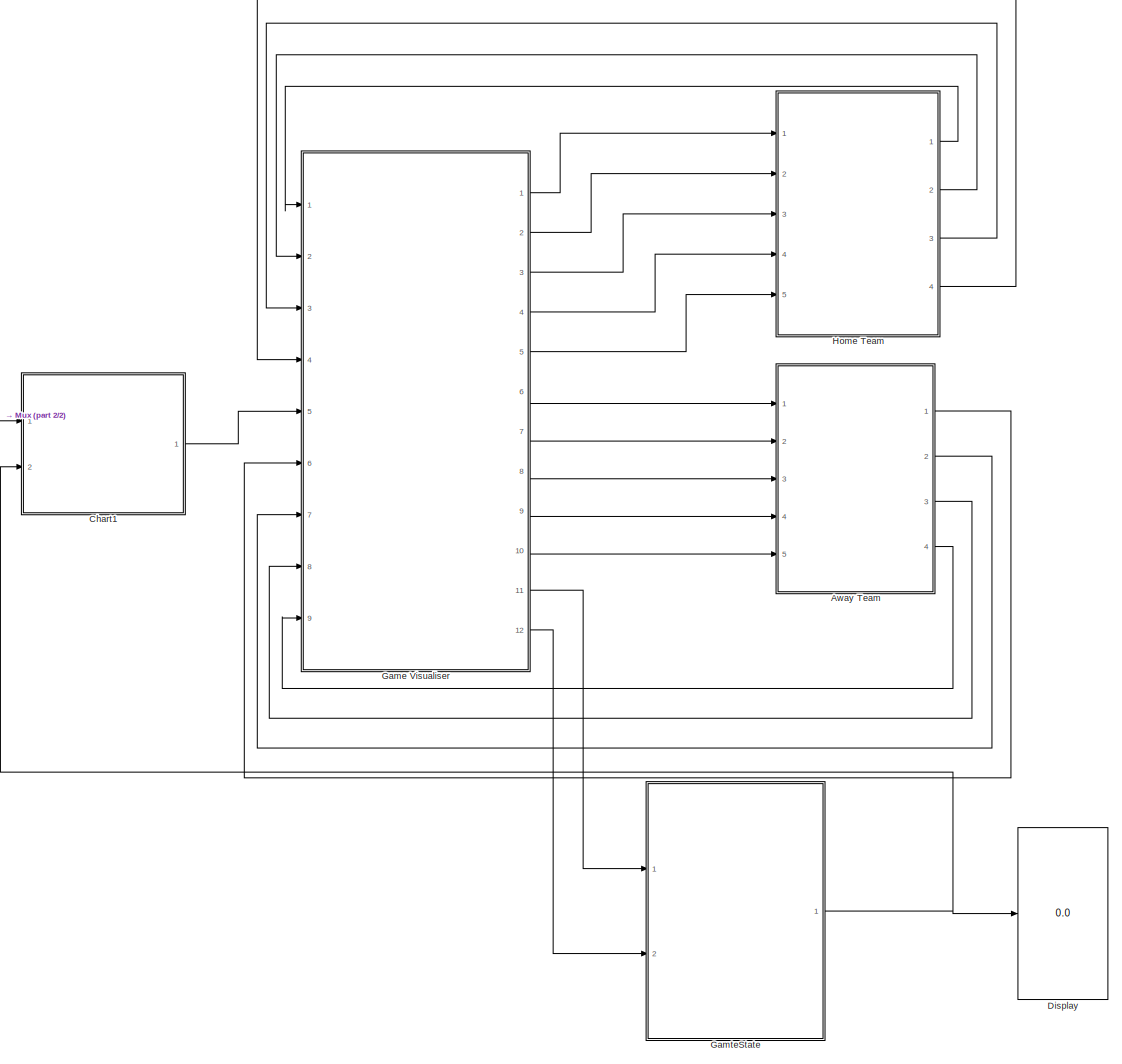
[diagram: root canvas - part 1/2, most of the canvas]
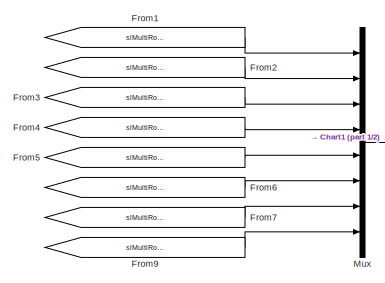
[diagram: root canvas - part 2/2, middle left region]
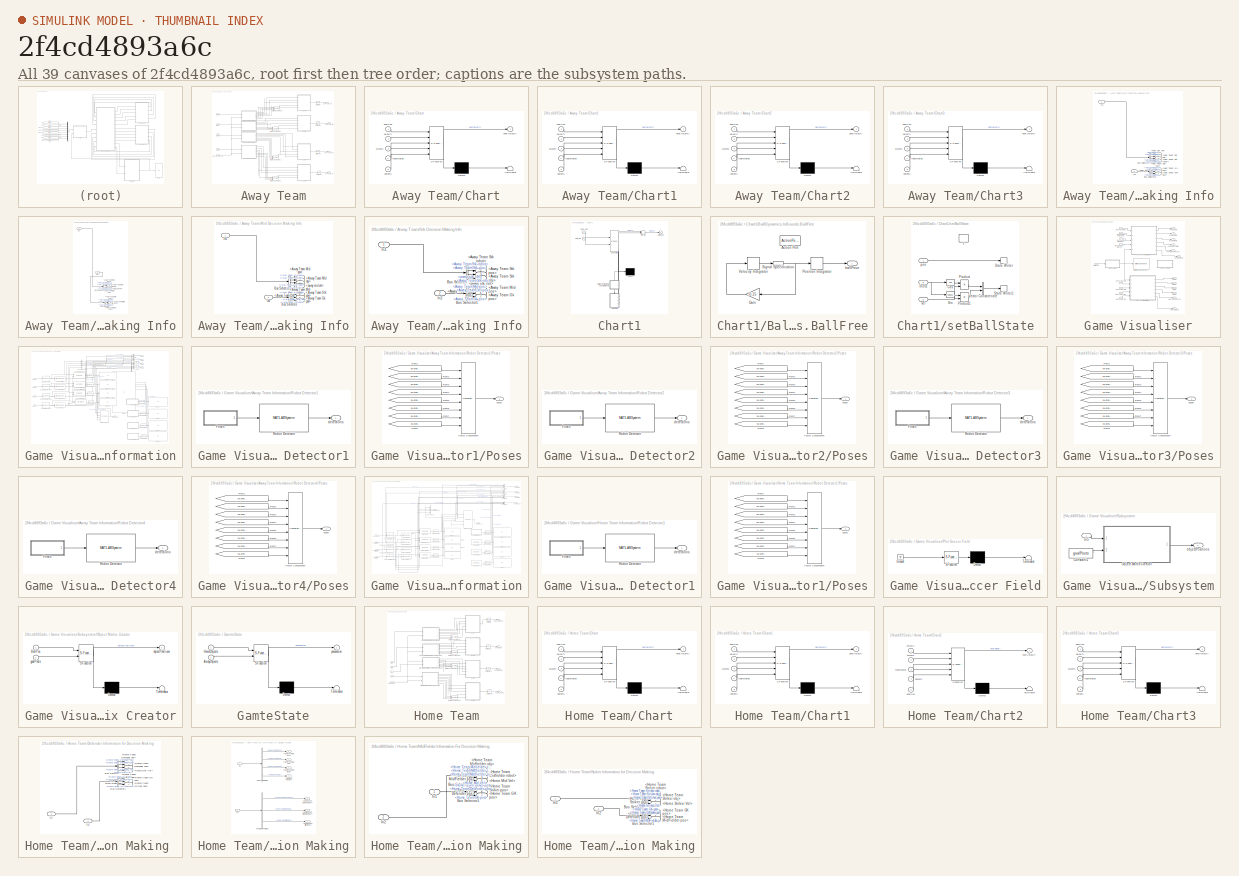
[diagram: thumbnail index - all 39 canvases of the model, root first then tree order]
MODEL slx_2f4cd4893a6c
KIND model
CONFIG AbsTol = auto
CONFIG EnableMultiTasking = on
CONFIG FixedStep = auto
CONFIG MaxStep = auto
CONFIG MinStep = auto
CONFIG RelTol = 1e-3
CONFIG SampleTimeConstraint = Unconstrained
CONFIG SolverName = FixedStepDiscrete
CONFIG StartTime = 0.0
CONFIG StopTime = inf
BLOCK [SubSystem] Away Team
  Ports = [5, 4]
  RequestExecContextInheritance = off
BLOCK [Inport] Away Team/AwayPlayerPoses
  Port = 5
BLOCK [SubSystem] Away Team/Chart
  ErrorFcn = Stateflow.Translate.translate
  PermitHierarchicalResolution = ExplicitOnly
  PortSchema = {"entries":[{"content":{"sides":[{"content":{"connectorIds":["In3","In1","In2","In5","In4"]},"type":"ConnectorPlacement.EquallySpacedRectSide","uuid":"cf890ef0-0ec1-422c-ab9c-1628c873ebf0"},{"content":{"connectorIds":["Out1"],"side":"RIGHT"},"type":"ConnectorPlacement.EquallySpacedRectSide","uuid":"0000e457-9393-40de-9950-8ff794b83dda"},{"content":{"connectorIds":[],"side":"TOP"},"type":"Connector...<+264ch>
  Ports = [5, 1]
  RequestExecContextInheritance = off
  SFBlockType = Chart
  TreatAsAtomicUnit = on
BLOCK [Demux] Away Team/Chart/ Demux 
  Outputs = 1
  Ports = [1, 1]
BLOCK [S-Function] Away Team/Chart/ SFunction 
  EnableBusSupport = on
  FunctionName = sf_sfun
  PortCounts = [5 2]
  Ports = [5, 2]
  SFcnIsStateOwnerBlock = off
  SFunctionDeploymentMode = off
  Tag = Stateflow S-Function 7
BLOCK [Terminator] Away Team/Chart/ Terminator 
BLOCK [Outport] Away Team/Chart/nextVelocity
BLOCK [Inport] Away Team/Chart/objects
  Port = 5
BLOCK [Inport] Away Team/Chart/players
  Port = 3
BLOCK [Inport] Away Team/Chart/position
BLOCK [Inport] Away Team/Chart/teammates
  Port = 4
BLOCK [Inport] Away Team/Chart/velocity
  Port = 2
BLOCK [SubSystem] Away Team/Chart1
  ErrorFcn = Stateflow.Translate.translate
  PermitHierarchicalResolution = ExplicitOnly
  PortSchema = {"entries":[{"content":{"sides":[{"content":{"connectorIds":["In1","In5","In3","In2","In4"]},"type":"ConnectorPlacement.EquallySpacedRectSide","uuid":"cf890ef0-0ec1-422c-ab9c-1628c873ebf0"},{"content":{"connectorIds":["Out1"],"side":"RIGHT"},"type":"ConnectorPlacement.EquallySpacedRectSide","uuid":"0000e457-9393-40de-9950-8ff794b83dda"},{"content":{"connectorIds":[],"side":"TOP"},"type":"Connector...<+264ch>
  Ports = [5, 1]
  RequestExecContextInheritance = off
  SFBlockType = Chart
  TreatAsAtomicUnit = on
BLOCK [Demux] Away Team/Chart1/ Demux 
  Outputs = 1
  Ports = [1, 1]
BLOCK [S-Function] Away Team/Chart1/ SFunction 
  EnableBusSupport = on
  FunctionName = sf_sfun
  PortCounts = [5 2]
  Ports = [5, 2]
  SFcnIsStateOwnerBlock = off
  SFunctionDeploymentMode = off
  Tag = Stateflow S-Function 8
BLOCK [Terminator] Away Team/Chart1/ Terminator 
BLOCK [Outport] Away Team/Chart1/nextVelocity
BLOCK [Inport] Away Team/Chart1/objects
  Port = 5
BLOCK [Inport] Away Team/Chart1/players
  Port = 3
BLOCK [Inport] Away Team/Chart1/position
BLOCK [Inport] Away Team/Chart1/teammates
  Port = 4
BLOCK [Inport] Away Team/Chart1/velocity
  Port = 2
BLOCK [SubSystem] Away Team/Chart2
  ErrorFcn = Stateflow.Translate.translate
  PermitHierarchicalResolution = ExplicitOnly
  PortSchema = {"entries":[{"content":{"sides":[{"content":{"connectorIds":["In2","In5","In1","In3","In4"]},"type":"ConnectorPlacement.EquallySpacedRectSide","uuid":"cf890ef0-0ec1-422c-ab9c-1628c873ebf0"},{"content":{"connectorIds":["Out1"],"side":"RIGHT"},"type":"ConnectorPlacement.EquallySpacedRectSide","uuid":"0000e457-9393-40de-9950-8ff794b83dda"},{"content":{"connectorIds":[],"side":"TOP"},"type":"Connector...<+264ch>
  Ports = [5, 1]
  RequestExecContextInheritance = off
  SFBlockType = Chart
  TreatAsAtomicUnit = on
BLOCK [Demux] Away Team/Chart2/ Demux 
  Outputs = 1
  Ports = [1, 1]
BLOCK [S-Function] Away Team/Chart2/ SFunction 
  EnableBusSupport = on
  FunctionName = sf_sfun
  PortCounts = [5 2]
  Ports = [5, 2]
  SFcnIsStateOwnerBlock = off
  SFunctionDeploymentMode = off
  Tag = Stateflow S-Function 9
BLOCK [Terminator] Away Team/Chart2/ Terminator 
BLOCK [Outport] Away Team/Chart2/nextVelocity
BLOCK [Inport] Away Team/Chart2/objects
  Port = 5
BLOCK [Inport] Away Team/Chart2/players
  Port = 3
BLOCK [Inport] Away Team/Chart2/position
BLOCK [Inport] Away Team/Chart2/teammates
  Port = 4
BLOCK [Inport] Away Team/Chart2/velocity
  Port = 2
BLOCK [SubSystem] Away Team/Chart3
  ErrorFcn = Stateflow.Translate.translate
  PermitHierarchicalResolution = ExplicitOnly
  PortSchema = {"entries":[{"content":{"sides":[{"content":{"connectorIds":["In1","In3","In5","In2","In4"]},"type":"ConnectorPlacement.EquallySpacedRectSide","uuid":"cf890ef0-0ec1-422c-ab9c-1628c873ebf0"},{"content":{"connectorIds":["Out1"],"side":"RIGHT"},"type":"ConnectorPlacement.EquallySpacedRectSide","uuid":"0000e457-9393-40de-9950-8ff794b83dda"},{"content":{"connectorIds":[],"side":"TOP"},"type":"Connector...<+264ch>
  Ports = [5, 1]
  RequestExecContextInheritance = off
  SFBlockType = Chart
  TreatAsAtomicUnit = on
BLOCK [Demux] Away Team/Chart3/ Demux 
  Outputs = 1
  Ports = [1, 1]
BLOCK [S-Function] Away Team/Chart3/ SFunction 
  EnableBusSupport = on
  FunctionName = sf_sfun
  PortCounts = [5 2]
  Ports = [5, 2]
  SFcnIsStateOwnerBlock = off
  SFunctionDeploymentMode = off
  Tag = Stateflow S-Function 10
BLOCK [Terminator] Away Team/Chart3/ Terminator 
BLOCK [Outport] Away Team/Chart3/nextVelocity
BLOCK [Inport] Away Team/Chart3/objects
  Port = 5
BLOCK [Inport] Away Team/Chart3/players
  Port = 3
BLOCK [Inport] Away Team/Chart3/position
BLOCK [Inport] Away Team/Chart3/teammates
  Port = 4
BLOCK [Inport] Away Team/Chart3/velocity
  Port = 2
BLOCK [SubSystem] Away Team/Def Decision Making Info
  Ports = [2, 7]
  RequestExecContextInheritance = off
BLOCK [Outport] Away Team/Def Decision Making Info/<Away Team Def obj>
  Port = 2
BLOCK [Outport] Away Team/Def Decision Making Info/<Away Team Def pos>
  Port = 3
BLOCK [Outport] Away Team/Def Decision Making Info/<Away Team Def robot>
  Port = 4
BLOCK [Outport] Away Team/Def Decision Making Info/<Away Team Gk pos>
  Port = 5
BLOCK [Outport] Away Team/Def Decision Making Info/<Away Team Mid pos>
  Port = 7
BLOCK [Outport] Away Team/Def Decision Making Info/<Away Team Stk pos>
  Port = 6
BLOCK [Outport] Away Team/Def Decision Making Info/<away def vel>
BLOCK [BusSelector] Away Team/Def Decision Making Info/Bus Selector4
  OutputSignals = away def vel,Away Team Def obj,Away Team Def pos,Away Team Def robot
  Ports = [1, 4]
BLOCK [BusSelector] Away Team/Def Decision Making Info/Bus Selector5
  OutputSignals = Away Team Gk pos,Away Team Stk pos,Away Team Mid pos
  Ports = [1, 3]
BLOCK [Inport] Away Team/Def Decision Making Info/In1
BLOCK [Inport] Away Team/Def Decision Making Info/In2
  Port = 2
BLOCK [Inport] Away Team/DefInfo
  Port = 3
BLOCK [SubSystem] Away Team/GK Decision Making Info
  Ports = [2, 7]
  RequestExecContextInheritance = off
BLOCK [Outport] Away Team/GK Decision Making Info/<Away Team Def pos>
  Port = 7
BLOCK [Outport] Away Team/GK Decision Making Info/<Away Team GK robot>
  Port = 2
BLOCK [Outport] Away Team/GK Decision Making Info/<Away Team Gk obj>
  Port = 3
BLOCK [Outport] Away Team/GK Decision Making Info/<Away Team Gk pos>
BLOCK [Outport] Away Team/GK Decision Making Info/<Away Team Mid pos>
  Port = 6
BLOCK [Outport] Away Team/GK Decision Making Info/<Away Team Stk pos>
  Port = 5
BLOCK [Outport] Away Team/GK Decision Making Info/<away gk vel>
  Port = 4
BLOCK [BusSelector] Away Team/GK Decision Making Info/Bus Selector
  OutputSignals = Away Team Gk pos,Away Team GK robot,Away Team Gk obj,away gk vel
  Ports = [1, 4]
BLOCK [BusSelector] Away Team/GK Decision Making Info/Bus Selector1
  OutputSignals = Away Team Stk pos,Away Team Mid pos,Away Team Def pos
  Ports = [1, 3]
BLOCK [Inport] Away Team/GK Decision Making Info/In1
BLOCK [Inport] Away Team/GK Decision Making Info/In2
  Port = 2
BLOCK [Inport] Away Team/GkInfo
  Port = 4
BLOCK [Concatenate] Away Team/Matrix Concatenate
  Mode = Multidimensional array
  NumInputs = 3
  Ports = [3, 1]
BLOCK [Concatenate] Away Team/Matrix Concatenate1
  Mode = Multidimensional array
  NameLocation = right
  NumInputs = 3
  Ports = [3, 1]
BLOCK [Concatenate] Away Team/Matrix Concatenate2
  Mode = Multidimensional array
  NumInputs = 3
  Ports = [3, 1]
BLOCK [Concatenate] Away Team/Matrix Concatenate3
  Mode = Multidimensional array
  NumInputs = 3
  Ports = [3, 1]
BLOCK [SubSystem] Away Team/Mid Decision Making Info
  Ports = [2, 7]
  RequestExecContextInheritance = off
BLOCK [Outport] Away Team/Mid Decision Making Info/<Away Team Def pos>
  Port = 6
BLOCK [Outport] Away Team/Mid Decision Making Info/<Away Team Gk pos>
  Port = 7
BLOCK [Outport] Away Team/Mid Decision Making Info/<Away Team MId obj>
  Port = 2
BLOCK [Outport] Away Team/Mid Decision Making Info/<Away Team MId robot>
  Port = 3
BLOCK [Outport] Away Team/Mid Decision Making Info/<Away Team Mid pos>
BLOCK [Outport] Away Team/Mid Decision Making Info/<Away Team Stk pos>
  Port = 5
BLOCK [Outport] Away Team/Mid Decision Making Info/<away mid vel>
  Port = 4
BLOCK [BusSelector] Away Team/Mid Decision Making Info/Bus Selector2
  OutputSignals = Away Team Mid pos,Away Team MId obj,Away Team MId robot,away mid vel
  Ports = [1, 4]
BLOCK [BusSelector] Away Team/Mid Decision Making Info/Bus Selector3
  OutputSignals = Away Team Stk pos,Away Team Def pos,Away Team Gk pos
  Ports = [1, 3]
BLOCK [Inport] Away Team/Mid Decision Making Info/In1
BLOCK [Inport] Away Team/Mid Decision Making Info/In2
  Port = 2
BLOCK [Inport] Away Team/MidInfo
  Port = 2
BLOCK [Outport] Away Team/Move Away Def
  Port = 3
BLOCK [Outport] Away Team/Move Away GK
  Port = 4
BLOCK [Outport] Away Team/Move Away Mid
  Port = 2
BLOCK [Outport] Away Team/Move Away Stk
BLOCK [SubSystem] Away Team/Stk Decision Making Info
  Ports = [2, 7]
  RequestExecContextInheritance = off
BLOCK [Outport] Away Team/Stk Decision Making Info/<Away Team Def pos>
  Port = 6
BLOCK [Outport] Away Team/Stk Decision Making Info/<Away Team Gk pos>
  Port = 7
BLOCK [Outport] Away Team/Stk Decision Making Info/<Away Team Mid pos>
  Port = 5
BLOCK [Outport] Away Team/Stk Decision Making Info/<Away Team Stk obj>
  Port = 4
BLOCK [Outport] Away Team/Stk Decision Making Info/<Away Team Stk pos>
  Port = 2
BLOCK [Outport] Away Team/Stk Decision Making Info/<Away Team Stk robot>
BLOCK [Outport] Away Team/Stk Decision Making Info/<away stk vel>
  Port = 3
BLOCK [BusSelector] Away Team/Stk Decision Making Info/Bus Selector
  OutputSignals = Away Team Stk robot,Away Team Stk pos,away stk vel,Away Team Stk obj
  Ports = [1, 4]
BLOCK [BusSelector] Away Team/Stk Decision Making Info/Bus Selector1
  OutputSignals = Away Team Mid pos,Away Team Def pos,Away Team Gk pos
  Ports = [1, 3]
BLOCK [Inport] Away Team/Stk Decision Making Info/In1
BLOCK [Inport] Away Team/Stk Decision Making Info/In2
  Port = 2
BLOCK [Inport] Away Team/StkInfo
BLOCK [UnitDelay] Away Team/Unit Delay
  HasFrameUpgradeWarning = on
  SampleTime = -1
BLOCK [UnitDelay] Away Team/Unit Delay2
  HasFrameUpgradeWarning = on
  SampleTime = -1
BLOCK [UnitDelay] Away Team/Unit Delay3
  HasFrameUpgradeWarning = on
  SampleTime = -1
BLOCK [UnitDelay] Away Team/Unit Delay4
  HasFrameUpgradeWarning = on
  SampleTime = -1
BLOCK [SubSystem] Chart1
  ErrorFcn = Stateflow.Translate.translate
  PermitHierarchicalResolution = ExplicitOnly
  Ports = [2, 1]
  RequestExecContextInheritance = off
  SFBlockType = Chart
  TreatAsAtomicUnit = on
BLOCK [Demux] Chart1/ Demux 
  Outputs = 1
  Ports = [1, 1]
BLOCK [Merge] Chart1/ Merge 
  Ports = [2, 1]
BLOCK [S-Function] Chart1/ SFunction 
  EnableBusSupport = on
  FunctionName = sf_sfun
  Parameters = attackerKickSpeed,ballThresh,fieldCenter,fieldLimitsX,fieldLimitsY,goalPosts,playerRadius
  PortCounts = [2 5]
  Ports = [2, 5]
  SFcnIsStateOwnerBlock = off
  SFunctionDeploymentMode = off
  Tag = Stateflow S-Function 11
BLOCK [SubSystem] Chart1/BallDynamics.InBounds.BallFree
  Ports = [0, 1, 0, 0, 0, 0, 0, 1]
  PreDeleteFcn = Stateflow.SLINSF.SimulinkMan.removePreDeleteFcn
  RequestExecContextInheritance = off
  UndoDeleteFcn = Stateflow.SLINSF.SimulinkMan.restorePreDeleteFcn
BLOCK [ActionPort] Chart1/BallDynamics.InBounds.BallFree/Action Port
  CopyFcn = Stateflow.SLINSF.SimulinkMan.removeBlockPreDeleteFcn
  PreDeleteFcn = Stateflow.SLINSF.SimulinkMan.unsafePredeleteFcn
BLOCK [Gain] Chart1/BallDynamics.InBounds.BallFree/Gain
  Gain = -0.25
  NameLocation = top
BLOCK [DiscreteIntegrator] Chart1/BallDynamics.InBounds.BallFree/Position Integrator
  ICPrevOutput = DiscIntNeverNeededParam
  ICPrevScaledInput = DiscIntNeverNeededParam
  InitialCondition = fieldCenter
  InitialConditionSetting = Auto
  Ports = [1, 1]
  SampleTime = -1
  StateName = ballPos
BLOCK [SignalSpecification] Chart1/BallDynamics.InBounds.BallFree/Signal Specification
  Dimensions = [1 2]
BLOCK [DiscreteIntegrator] Chart1/BallDynamics.InBounds.BallFree/Velocity Integrator
  ICPrevOutput = DiscIntNeverNeededParam
  ICPrevScaledInput = DiscIntNeverNeededParam
  InitialCondition = [0 0]
  InitialConditionSetting = Auto
  Ports = [1, 1]
  SampleTime = -1
  StateName = ballVel
BLOCK [Outport] Chart1/BallDynamics.InBounds.BallFree/ballPose
  VectorParamsAs1DForOutWhenUnconnected = off
BLOCK [Outport] Chart1/ballPose
BLOCK [Inport] Chart1/hold_idx
  Port = 2
BLOCK [Inport] Chart1/robo_pos
BLOCK [SubSystem] Chart1/setBallState
  Ports = [3, 0, 0, 1]
  PreDeleteFcn = Stateflow.SLINSF.SimulinkMan.removePreDeleteFcn
  RequestExecContextInheritance = off
  UndoDeleteFcn = Stateflow.SLINSF.SimulinkMan.restorePreDeleteFcn
BLOCK [Trigonometry] Chart1/setBallState/Cos
  Operator = cos
  Ports = [1, 1]
BLOCK [Product] Chart1/setBallState/Product
  Ports = [2, 1]
BLOCK [Product] Chart1/setBallState/Product1
  Ports = [2, 1]
BLOCK [Trigonometry] Chart1/setBallState/Sin
  Ports = [1, 1]
BLOCK [StateWriter] Chart1/setBallState/State Writer
  StateName = ballPos
  StateOwnerBlock = ../../BallDynamics.InBounds.BallFree/Position Integrator
BLOCK [StateWriter] Chart1/setBallState/State Writer1
  StateName = ballVel
  StateOwnerBlock = ../../BallDynamics.InBounds.BallFree/Velocity Integrator
BLOCK [Concatenate] Chart1/setBallState/Vector Concatenate
  ConcatenateDimension = 2
  Mode = Multidimensional array
  Ports = [2, 1]
BLOCK [TriggerPort] Chart1/setBallState/f
  CopyFcn = Stateflow.SLINSF.SimulinkMan.removeBlockPreDeleteFcn
  Ports = []
  PreDeleteFcn = Stateflow.SLINSF.SimulinkMan.unsafePredeleteFcn
  StatesWhenEnabling = held
  TriggerType = function-call
  VariantControl = (inherit)
BLOCK [Inport] Chart1/setBallState/pos
  OutDataTypeStr = double
  PortDimensions = [1 2]
  SignalType = real
  VarSizeSig = No
BLOCK [Inport] Chart1/setBallState/theta
  OutDataTypeStr = double
  Port = 3
  PortDimensions = 1
  SignalType = real
  VarSizeSig = No
BLOCK [Inport] Chart1/setBallState/vel
  OutDataTypeStr = double
  Port = 2
  PortDimensions = 1
  SignalType = real
  VarSizeSig = No
BLOCK [Display] Display
  Decimation = 1
  Ports = [1]
BLOCK [From] From1
  GotoTag = slMultiRobotEnv_Pose_1
  TagVisibility = global
BLOCK [From] From2
  GotoTag = slMultiRobotEnv_Pose_2
  TagVisibility = global
BLOCK [From] From3
  GotoTag = slMultiRobotEnv_Pose_3
  TagVisibility = global
BLOCK [From] From4
  GotoTag = slMultiRobotEnv_Pose_4
  TagVisibility = global
BLOCK [From] From5
  GotoTag = slMultiRobotEnv_Pose_5
  TagVisibility = global
BLOCK [From] From6
  GotoTag = slMultiRobotEnv_Pose_6
  TagVisibility = global
BLOCK [From] From7
  GotoTag = slMultiRobotEnv_Pose_7
  TagVisibility = global
BLOCK [From] From9
  GotoTag = slMultiRobotEnv_Pose_8
  TagVisibility = global
BLOCK [SubSystem] Game Visualiser
  Ports = [9, 12]
  RequestExecContextInheritance = off
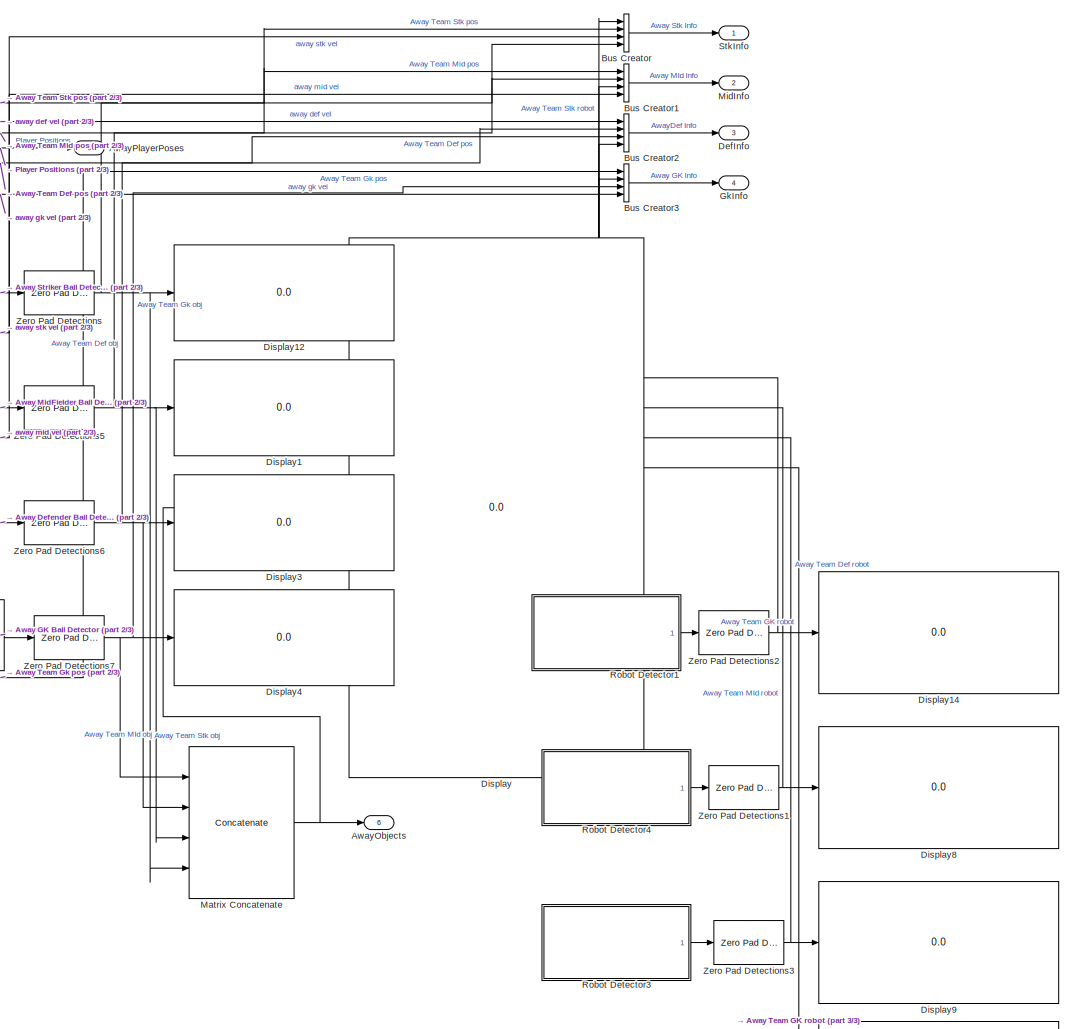
[diagram: Game Visualiser/Away Team Information - part 1/3, right side, full height]
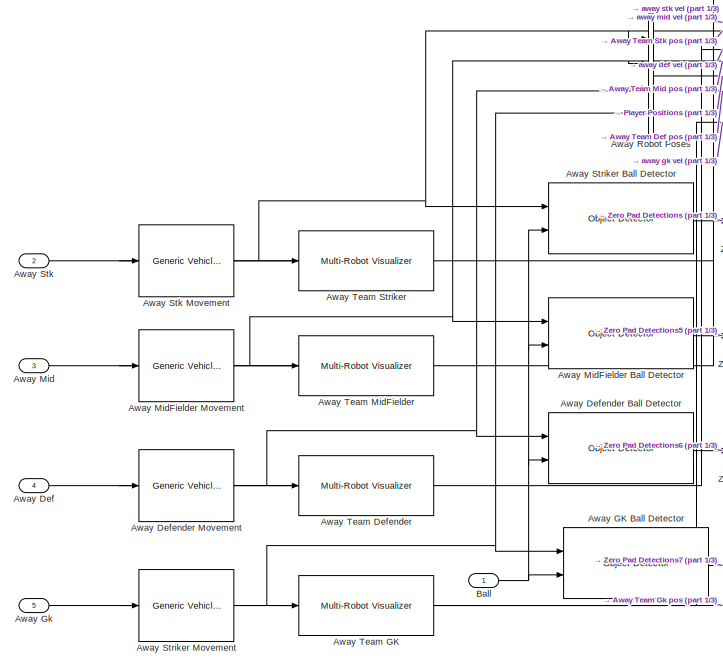
[diagram: Game Visualiser/Away Team Information - part 2/3, middle left region]
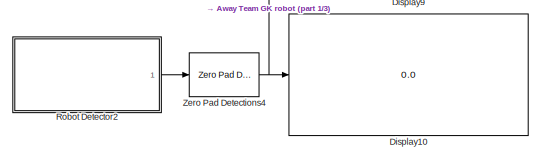
[diagram: Game Visualiser/Away Team Information - part 3/3, bottom right region]
BLOCK [SubSystem] Game Visualiser/Away Team Information
  Ports = [5, 6]
  RequestExecContextInheritance = off
BLOCK [Inport] Game Visualiser/Away Team Information/Away Def
  Port = 4
BLOCK [Reference] Game Visualiser/Away Team Information/Away Defender Ball Detector  REF=mobileRoboticsLib/Environments/Object Detector
  Ports = [2, 1]
  SourceBlock = mobileRoboticsLib/Environments/Object Detector
  SourceProductName = Mobile Robotics Simulation Toolbox
  SourceType = ObjectDetector
BLOCK [Reference] Game Visualiser/Away Team Information/Away Defender Movement  REF=mobileRoboticsLib/Utilities/Generic Vehicle Simulation
  Ports = [1, 1]
  SourceBlock = mobileRoboticsLib/Utilities/Generic Vehicle Simulation
  SourceProductName = Mobile Robotics Simulation Toolbox
  SourceType = Generic Vehicle Simulation
BLOCK [Reference] Game Visualiser/Away Team Information/Away GK Ball Detector  REF=mobileRoboticsLib/Environments/Object Detector
  Ports = [2, 1]
  SourceBlock = mobileRoboticsLib/Environments/Object Detector
  SourceProductName = Mobile Robotics Simulation Toolbox
  SourceType = ObjectDetector
BLOCK [Inport] Game Visualiser/Away Team Information/Away Gk 
  Port = 5
BLOCK [Inport] Game Visualiser/Away Team Information/Away Mid
  Port = 3
BLOCK [Reference] Game Visualiser/Away Team Information/Away MidFielder Ball Detector  REF=mobileRoboticsLib/Environments/Object Detector
  Ports = [2, 1]
  SourceBlock = mobileRoboticsLib/Environments/Object Detector
  SourceProductName = Mobile Robotics Simulation Toolbox
  SourceType = ObjectDetector
BLOCK [Reference] Game Visualiser/Away Team Information/Away MidFielder Movement  REF=mobileRoboticsLib/Utilities/Generic Vehicle Simulation
  Ports = [1, 1]
  SourceBlock = mobileRoboticsLib/Utilities/Generic Vehicle Simulation
  SourceProductName = Mobile Robotics Simulation Toolbox
  SourceType = Generic Vehicle Simulation
BLOCK [BusCreator] Game Visualiser/Away Team Information/Away Robot Poses
  DisplayOption = bar
  InheritFromInputs = on
  Inputs = 4
  Ports = [4, 1]
BLOCK [Inport] Game Visualiser/Away Team Information/Away Stk
  Port = 2
BLOCK [Reference] Game Visualiser/Away Team Information/Away Stk Movement  REF=mobileRoboticsLib/Utilities/Generic Vehicle Simulation
  Ports = [1, 1]
  SourceBlock = mobileRoboticsLib/Utilities/Generic Vehicle Simulation
  SourceProductName = Mobile Robotics Simulation Toolbox
  SourceType = Generic Vehicle Simulation
BLOCK [Reference] Game Visualiser/Away Team Information/Away Striker Ball Detector  REF=mobileRoboticsLib/Environments/Object Detector
  Ports = [2, 1]
  SourceBlock = mobileRoboticsLib/Environments/Object Detector
  SourceProductName = Mobile Robotics Simulation Toolbox
  SourceType = ObjectDetector
BLOCK [Reference] Game Visualiser/Away Team Information/Away Striker Movement  REF=mobileRoboticsLib/Utilities/Generic Vehicle Simulation
  Ports = [1, 1]
  SourceBlock = mobileRoboticsLib/Utilities/Generic Vehicle Simulation
  SourceProductName = Mobile Robotics Simulation Toolbox
  SourceType = Generic Vehicle Simulation
BLOCK [Reference] Game Visualiser/Away Team Information/Away Team Defender  REF=mobileRoboticsLib/Environments/Multi-Robot Visualizer
  Ports = [1]
  SourceBlock = mobileRoboticsLib/Environments/Multi-Robot Visualizer
  SourceProductName = Mobile Robotics Simulation Toolbox
  SourceType = Multi-Robot Visualizer
BLOCK [Reference] Game Visualiser/Away Team Information/Away Team GK  REF=mobileRoboticsLib/Environments/Multi-Robot Visualizer
  Ports = [1]
  SourceBlock = mobileRoboticsLib/Environments/Multi-Robot Visualizer
  SourceProductName = Mobile Robotics Simulation Toolbox
  SourceType = Multi-Robot Visualizer
BLOCK [Reference] Game Visualiser/Away Team Information/Away Team MidFielder  REF=mobileRoboticsLib/Environments/Multi-Robot Visualizer
  Ports = [1]
  SourceBlock = mobileRoboticsLib/Environments/Multi-Robot Visualizer
  SourceProductName = Mobile Robotics Simulation Toolbox
  SourceType = Multi-Robot Visualizer
BLOCK [Reference] Game Visualiser/Away Team Information/Away Team Striker  REF=mobileRoboticsLib/Environments/Multi-Robot Visualizer
  Ports = [1]
  SourceBlock = mobileRoboticsLib/Environments/Multi-Robot Visualizer
  SourceProductName = Mobile Robotics Simulation Toolbox
  SourceType = Multi-Robot Visualizer
BLOCK [Outport] Game Visualiser/Away Team Information/AwayObjects
  Port = 6
BLOCK [Outport] Game Visualiser/Away Team Information/AwayPlayerPoses
  Port = 5
BLOCK [Inport] Game Visualiser/Away Team Information/Ball
BLOCK [BusCreator] Game Visualiser/Away Team Information/Bus Creator
  DisplayOption = bar
  InheritFromInputs = on
  Inputs = 4
  Ports = [4, 1]
BLOCK [BusCreator] Game Visualiser/Away Team Information/Bus Creator1
  DisplayOption = bar
  InheritFromInputs = on
  Inputs = 4
  Ports = [4, 1]
BLOCK [BusCreator] Game Visualiser/Away Team Information/Bus Creator2
  DisplayOption = bar
  InheritFromInputs = on
  Inputs = 4
  Ports = [4, 1]
BLOCK [BusCreator] Game Visualiser/Away Team Information/Bus Creator3
  DisplayOption = bar
  InheritFromInputs = on
  Inputs = 4
  Ports = [4, 1]
BLOCK [Outport] Game Visualiser/Away Team Information/DefInfo
  Port = 3
BLOCK [Display] Game Visualiser/Away Team Information/Display
  Decimation = 1
  Ports = [1]
BLOCK [Display] Game Visualiser/Away Team Information/Display1
  Decimation = 1
  Ports = [1]
BLOCK [Display] Game Visualiser/Away Team Information/Display10
  Decimation = 1
  Ports = [1]
BLOCK [Display] Game Visualiser/Away Team Information/Display12
  Decimation = 1
  Ports = [1]
BLOCK [Display] Game Visualiser/Away Team Information/Display14
  Decimation = 1
  Ports = [1]
BLOCK [Display] Game Visualiser/Away Team Information/Display3
  Decimation = 1
  Ports = [1]
BLOCK [Display] Game Visualiser/Away Team Information/Display4
  Decimation = 1
  Ports = [1]
BLOCK [Display] Game Visualiser/Away Team Information/Display8
  Decimation = 1
  Ports = [1]
BLOCK [Display] Game Visualiser/Away Team Information/Display9
  Decimation = 1
  Ports = [1]
BLOCK [Outport] Game Visualiser/Away Team Information/GkInfo
  Port = 4
BLOCK [Concatenate] Game Visualiser/Away Team Information/Matrix Concatenate
  Mode = Multidimensional array
  NumInputs = 4
  Ports = [4, 1]
BLOCK [Outport] Game Visualiser/Away Team Information/MidInfo
  Port = 2
BLOCK [SubSystem] Game Visualiser/Away Team Information/Robot Detector1
  AncestorBlock = mobileRoboticsLib/Environments/Robot Detector
  Ports = [0, 1]
  RequestExecContextInheritance = off
BLOCK [SubSystem] Game Visualiser/Away Team Information/Robot Detector1/Poses
  Ports = [0, 1]
  RequestExecContextInheritance = off
BLOCK [From] Game Visualiser/Away Team Information/Robot Detector1/Poses/From1
  GotoTag = slMultiRobotEnv_Pose_1
  TagVisibility = global
BLOCK [From] Game Visualiser/Away Team Information/Robot Detector1/Poses/From2
  GotoTag = slMultiRobotEnv_Pose_2
  TagVisibility = global
BLOCK [From] Game Visualiser/Away Team Information/Robot Detector1/Poses/From3
  GotoTag = slMultiRobotEnv_Pose_3
  TagVisibility = global
BLOCK [From] Game Visualiser/Away Team Information/Robot Detector1/Poses/From4
  GotoTag = slMultiRobotEnv_Pose_4
  TagVisibility = global
BLOCK [From] Game Visualiser/Away Team Information/Robot Detector1/Poses/From5
  GotoTag = slMultiRobotEnv_Pose_5
  TagVisibility = global
BLOCK [From] Game Visualiser/Away Team Information/Robot Detector1/Poses/From6
  GotoTag = slMultiRobotEnv_Pose_6
  TagVisibility = global
BLOCK [From] Game Visualiser/Away Team Information/Robot Detector1/Poses/From7
  GotoTag = slMultiRobotEnv_Pose_7
  TagVisibility = global
BLOCK [From] Game Visualiser/Away Team Information/Robot Detector1/Poses/From8
  GotoTag = slMultiRobotEnv_Pose_8
  TagVisibility = global
BLOCK [Concatenate] Game Visualiser/Away Team Information/Robot Detector1/Poses/Vector Concatenate
  ConcatenateDimension = 2
  Mode = Multidimensional array
  NumInputs = 8
  Ports = [8, 1]
BLOCK [Outport] Game Visualiser/Away Team Information/Robot Detector1/Poses/poses
BLOCK [MATLABSystem] Game Visualiser/Away Team Information/Robot Detector1/Robot Detector
  MaskDisplay = disp(['Robot 5' char(10) 'Detector']);\nport_label('output',1,'detections');
  MaskType = RobotDetector
  Ports = [1, 1]
  System = RobotDetector
  fieldOfView = sensorFOV
  mapName = map
  maxDetections = maxDetections
  maxRange = maxRange
  robotIdx = robotIdx
  sampleTime = sampleTime
  sensorAngle = sensorAngle
  sensorOffset = sensorOffset
BLOCK [Outport] Game Visualiser/Away Team Information/Robot Detector1/detections
  VectorParamsAs1DForOutWhenUnconnected = off
BLOCK [SubSystem] Game Visualiser/Away Team Information/Robot Detector2
  AncestorBlock = mobileRoboticsLib/Environments/Robot Detector
  Ports = [0, 1]
  RequestExecContextInheritance = off
BLOCK [SubSystem] Game Visualiser/Away Team Information/Robot Detector2/Poses
  Ports = [0, 1]
  RequestExecContextInheritance = off
BLOCK [From] Game Visualiser/Away Team Information/Robot Detector2/Poses/From1
  GotoTag = slMultiRobotEnv_Pose_1
  TagVisibility = global
BLOCK [From] Game Visualiser/Away Team Information/Robot Detector2/Poses/From2
  GotoTag = slMultiRobotEnv_Pose_2
  TagVisibility = global
BLOCK [From] Game Visualiser/Away Team Information/Robot Detector2/Poses/From3
  GotoTag = slMultiRobotEnv_Pose_3
  TagVisibility = global
BLOCK [From] Game Visualiser/Away Team Information/Robot Detector2/Poses/From4
  GotoTag = slMultiRobotEnv_Pose_4
  TagVisibility = global
BLOCK [From] Game Visualiser/Away Team Information/Robot Detector2/Poses/From5
  GotoTag = slMultiRobotEnv_Pose_5
  TagVisibility = global
BLOCK [From] Game Visualiser/Away Team Information/Robot Detector2/Poses/From6
  GotoTag = slMultiRobotEnv_Pose_6
  TagVisibility = global
BLOCK [From] Game Visualiser/Away Team Information/Robot Detector2/Poses/From7
  GotoTag = slMultiRobotEnv_Pose_7
  TagVisibility = global
BLOCK [From] Game Visualiser/Away Team Information/Robot Detector2/Poses/From8
  GotoTag = slMultiRobotEnv_Pose_8
  TagVisibility = global
BLOCK [Concatenate] Game Visualiser/Away Team Information/Robot Detector2/Poses/Vector Concatenate
  ConcatenateDimension = 2
  Mode = Multidimensional array
  NumInputs = 8
  Ports = [8, 1]
BLOCK [Outport] Game Visualiser/Away Team Information/Robot Detector2/Poses/poses
BLOCK [MATLABSystem] Game Visualiser/Away Team Information/Robot Detector2/Robot Detector
  MaskDisplay = disp(['Robot 8' char(10) 'Detector']);\nport_label('output',1,'detections');
  MaskType = RobotDetector
  Ports = [1, 1]
  System = RobotDetector
  fieldOfView = sensorFOV
  mapName = map
  maxDetections = maxDetections
  maxRange = maxRange
  robotIdx = robotIdx
  sampleTime = sampleTime
  sensorAngle = sensorAngle
  sensorOffset = sensorOffset
BLOCK [Outport] Game Visualiser/Away Team Information/Robot Detector2/detections
  VectorParamsAs1DForOutWhenUnconnected = off
BLOCK [SubSystem] Game Visualiser/Away Team Information/Robot Detector3
  AncestorBlock = mobileRoboticsLib/Environments/Robot Detector
  Ports = [0, 1]
  RequestExecContextInheritance = off
BLOCK [SubSystem] Game Visualiser/Away Team Information/Robot Detector3/Poses
  Ports = [0, 1]
  RequestExecContextInheritance = off
BLOCK [From] Game Visualiser/Away Team Information/Robot Detector3/Poses/From1
  GotoTag = slMultiRobotEnv_Pose_1
  TagVisibility = global
BLOCK [From] Game Visualiser/Away Team Information/Robot Detector3/Poses/From2
  GotoTag = slMultiRobotEnv_Pose_2
  TagVisibility = global
BLOCK [From] Game Visualiser/Away Team Information/Robot Detector3/Poses/From3
  GotoTag = slMultiRobotEnv_Pose_3
  TagVisibility = global
BLOCK [From] Game Visualiser/Away Team Information/Robot Detector3/Poses/From4
  GotoTag = slMultiRobotEnv_Pose_4
  TagVisibility = global
BLOCK [From] Game Visualiser/Away Team Information/Robot Detector3/Poses/From5
  GotoTag = slMultiRobotEnv_Pose_5
  TagVisibility = global
BLOCK [From] Game Visualiser/Away Team Information/Robot Detector3/Poses/From6
  GotoTag = slMultiRobotEnv_Pose_6
  TagVisibility = global
BLOCK [From] Game Visualiser/Away Team Information/Robot Detector3/Poses/From7
  GotoTag = slMultiRobotEnv_Pose_7
  TagVisibility = global
BLOCK [From] Game Visualiser/Away Team Information/Robot Detector3/Poses/From8
  GotoTag = slMultiRobotEnv_Pose_8
  TagVisibility = global
BLOCK [Concatenate] Game Visualiser/Away Team Information/Robot Detector3/Poses/Vector Concatenate
  ConcatenateDimension = 2
  Mode = Multidimensional array
  NumInputs = 8
  Ports = [8, 1]
BLOCK [Outport] Game Visualiser/Away Team Information/Robot Detector3/Poses/poses
BLOCK [MATLABSystem] Game Visualiser/Away Team Information/Robot Detector3/Robot Detector
  MaskDisplay = disp(['Robot 7' char(10) 'Detector']);\nport_label('output',1,'detections');
  MaskType = RobotDetector
  Ports = [1, 1]
  System = RobotDetector
  fieldOfView = sensorFOV
  mapName = map
  maxDetections = maxDetections
  maxRange = maxRange
  robotIdx = robotIdx
  sampleTime = sampleTime
  sensorAngle = sensorAngle
  sensorOffset = sensorOffset
BLOCK [Outport] Game Visualiser/Away Team Information/Robot Detector3/detections
  VectorParamsAs1DForOutWhenUnconnected = off
BLOCK [SubSystem] Game Visualiser/Away Team Information/Robot Detector4
  AncestorBlock = mobileRoboticsLib/Environments/Robot Detector
  Ports = [0, 1]
  RequestExecContextInheritance = off
BLOCK [SubSystem] Game Visualiser/Away Team Information/Robot Detector4/Poses
  Ports = [0, 1]
  RequestExecContextInheritance = off
BLOCK [From] Game Visualiser/Away Team Information/Robot Detector4/Poses/From1
  GotoTag = slMultiRobotEnv_Pose_1
  TagVisibility = global
BLOCK [From] Game Visualiser/Away Team Information/Robot Detector4/Poses/From2
  GotoTag = slMultiRobotEnv_Pose_2
  TagVisibility = global
BLOCK [From] Game Visualiser/Away Team Information/Robot Detector4/Poses/From3
  GotoTag = slMultiRobotEnv_Pose_3
  TagVisibility = global
BLOCK [From] Game Visualiser/Away Team Information/Robot Detector4/Poses/From4
  GotoTag = slMultiRobotEnv_Pose_4
  TagVisibility = global
BLOCK [From] Game Visualiser/Away Team Information/Robot Detector4/Poses/From5
  GotoTag = slMultiRobotEnv_Pose_5
  TagVisibility = global
BLOCK [From] Game Visualiser/Away Team Information/Robot Detector4/Poses/From6
  GotoTag = slMultiRobotEnv_Pose_6
  TagVisibility = global
BLOCK [From] Game Visualiser/Away Team Information/Robot Detector4/Poses/From7
  GotoTag = slMultiRobotEnv_Pose_7
  TagVisibility = global
BLOCK [From] Game Visualiser/Away Team Information/Robot Detector4/Poses/From8
  GotoTag = slMultiRobotEnv_Pose_8
  TagVisibility = global
BLOCK [Concatenate] Game Visualiser/Away Team Information/Robot Detector4/Poses/Vector Concatenate
  ConcatenateDimension = 2
  Mode = Multidimensional array
  NumInputs = 8
  Ports = [8, 1]
BLOCK [Outport] Game Visualiser/Away Team Information/Robot Detector4/Poses/poses
BLOCK [MATLABSystem] Game Visualiser/Away Team Information/Robot Detector4/Robot Detector
  MaskDisplay = disp(['Robot 6' char(10) 'Detector']);\nport_label('output',1,'detections');
  MaskType = RobotDetector
  Ports = [1, 1]
  System = RobotDetector
  fieldOfView = sensorFOV
  mapName = map
  maxDetections = maxDetections
  maxRange = maxRange
  robotIdx = robotIdx
  sampleTime = sampleTime
  sensorAngle = sensorAngle
  sensorOffset = sensorOffset
BLOCK [Outport] Game Visualiser/Away Team Information/Robot Detector4/detections
  VectorParamsAs1DForOutWhenUnconnected = off
BLOCK [Outport] Game Visualiser/Away Team Information/StkInfo
BLOCK [Reference] Game Visualiser/Away Team Information/Zero Pad Detections  REF=soccerRobotLib/Soccer Robot Simulator/Zero Pad Detections
  Ports = [1, 1]
  SourceBlock = soccerRobotLib/Soccer Robot Simulator/Zero Pad Detections
  SourceType = Zero Pad Detections
BLOCK [Reference] Game Visualiser/Away Team Information/Zero Pad Detections1  REF=soccerRobotLib/Soccer Robot Simulator/Zero Pad Detections
  Ports = [1, 1]
  SourceBlock = soccerRobotLib/Soccer Robot Simulator/Zero Pad Detections
  SourceType = Zero Pad Detections
BLOCK [Reference] Game Visualiser/Away Team Information/Zero Pad Detections2  REF=soccerRobotLib/Soccer Robot Simulator/Zero Pad Detections
  Ports = [1, 1]
  SourceBlock = soccerRobotLib/Soccer Robot Simulator/Zero Pad Detections
  SourceType = Zero Pad Detections
BLOCK [Reference] Game Visualiser/Away Team Information/Zero Pad Detections3  REF=soccerRobotLib/Soccer Robot Simulator/Zero Pad Detections
  Ports = [1, 1]
  SourceBlock = soccerRobotLib/Soccer Robot Simulator/Zero Pad Detections
  SourceType = Zero Pad Detections
BLOCK [Reference] Game Visualiser/Away Team Information/Zero Pad Detections4  REF=soccerRobotLib/Soccer Robot Simulator/Zero Pad Detections
  Ports = [1, 1]
  SourceBlock = soccerRobotLib/Soccer Robot Simulator/Zero Pad Detections
  SourceType = Zero Pad Detections
BLOCK [Reference] Game Visualiser/Away Team Information/Zero Pad Detections5  REF=soccerRobotLib/Soccer Robot Simulator/Zero Pad Detections
  Ports = [1, 1]
  SourceBlock = soccerRobotLib/Soccer Robot Simulator/Zero Pad Detections
  SourceType = Zero Pad Detections
BLOCK [Reference] Game Visualiser/Away Team Information/Zero Pad Detections6  REF=soccerRobotLib/Soccer Robot Simulator/Zero Pad Detections
  Ports = [1, 1]
  SourceBlock = soccerRobotLib/Soccer Robot Simulator/Zero Pad Detections
  SourceType = Zero Pad Detections
BLOCK [Reference] Game Visualiser/Away Team Information/Zero Pad Detections7  REF=soccerRobotLib/Soccer Robot Simulator/Zero Pad Detections
  Ports = [1, 1]
  SourceBlock = soccerRobotLib/Soccer Robot Simulator/Zero Pad Detections
  SourceType = Zero Pad Detections
BLOCK [Outport] Game Visualiser/AwayObjects
  Port = 12
BLOCK [Outport] Game Visualiser/AwayPlayerPoses
  Port = 10
BLOCK [Outport] Game Visualiser/DefInfo
  Port = 8
BLOCK [Outport] Game Visualiser/GkInfo
  Port = 9
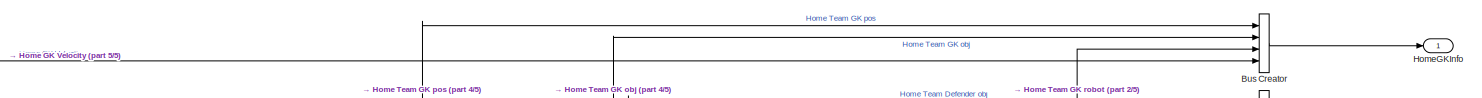
[diagram: Game Visualiser/Home Team Information - part 1/5, full width, top band]
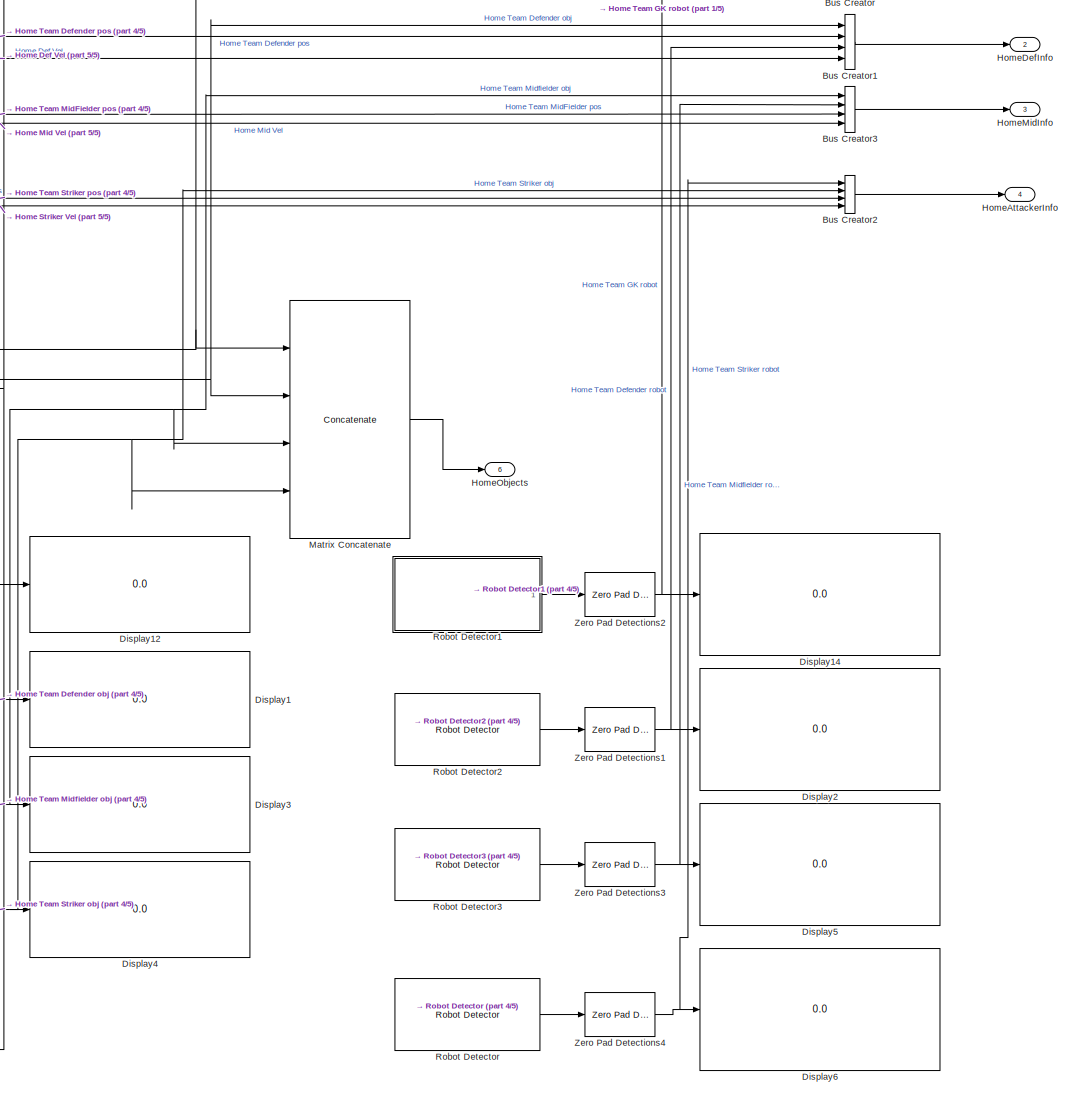
[diagram: Game Visualiser/Home Team Information - part 2/5, right side, full height]
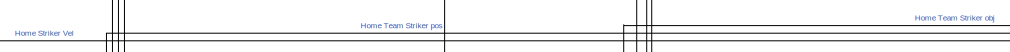
[diagram: Game Visualiser/Home Team Information - part 3/5, top center region]
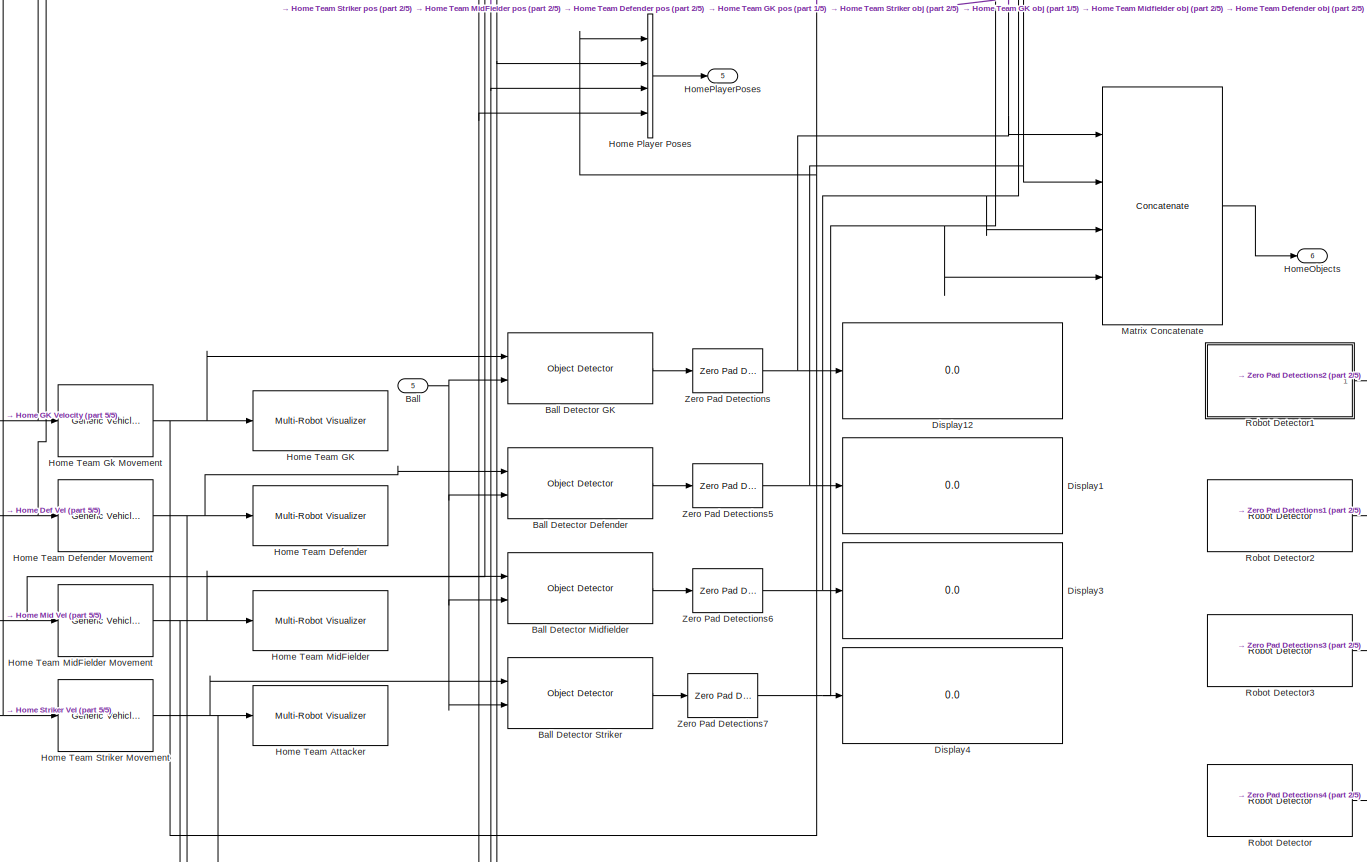
[diagram: Game Visualiser/Home Team Information - part 4/5, central region]
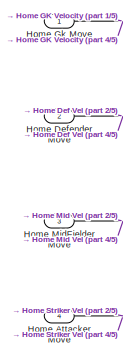
[diagram: Game Visualiser/Home Team Information - part 5/5, bottom left region]
BLOCK [SubSystem] Game Visualiser/Home Team Information
  Ports = [5, 6]
  RequestExecContextInheritance = off
BLOCK [Inport] Game Visualiser/Home Team Information/Ball
  Port = 5
BLOCK [Reference] Game Visualiser/Home Team Information/Ball Detector Defender  REF=mobileRoboticsLib/Environments/Object Detector
  Ports = [2, 1]
  SourceBlock = mobileRoboticsLib/Environments/Object Detector
  SourceProductName = Mobile Robotics Simulation Toolbox
  SourceType = ObjectDetector
BLOCK [Reference] Game Visualiser/Home Team Information/Ball Detector GK  REF=mobileRoboticsLib/Environments/Object Detector
  Ports = [2, 1]
  SourceBlock = mobileRoboticsLib/Environments/Object Detector
  SourceProductName = Mobile Robotics Simulation Toolbox
  SourceType = ObjectDetector
BLOCK [Reference] Game Visualiser/Home Team Information/Ball Detector Midfielder  REF=mobileRoboticsLib/Environments/Object Detector
  Ports = [2, 1]
  SourceBlock = mobileRoboticsLib/Environments/Object Detector
  SourceProductName = Mobile Robotics Simulation Toolbox
  SourceType = ObjectDetector
BLOCK [Reference] Game Visualiser/Home Team Information/Ball Detector Striker  REF=mobileRoboticsLib/Environments/Object Detector
  Ports = [2, 1]
  SourceBlock = mobileRoboticsLib/Environments/Object Detector
  SourceProductName = Mobile Robotics Simulation Toolbox
  SourceType = ObjectDetector
BLOCK [BusCreator] Game Visualiser/Home Team Information/Bus Creator
  DisplayOption = bar
  InheritFromInputs = on
  Inputs = 4
  Ports = [4, 1]
BLOCK [BusCreator] Game Visualiser/Home Team Information/Bus Creator1
  DisplayOption = bar
  InheritFromInputs = on
  Inputs = 4
  Ports = [4, 1]
BLOCK [BusCreator] Game Visualiser/Home Team Information/Bus Creator2
  DisplayOption = bar
  InheritFromInputs = on
  Inputs = 4
  Ports = [4, 1]
BLOCK [BusCreator] Game Visualiser/Home Team Information/Bus Creator3
  DisplayOption = bar
  InheritFromInputs = on
  Inputs = 4
  Ports = [4, 1]
BLOCK [Display] Game Visualiser/Home Team Information/Display1
  Decimation = 1
  Ports = [1]
BLOCK [Display] Game Visualiser/Home Team Information/Display12
  Decimation = 1
  Ports = [1]
BLOCK [Display] Game Visualiser/Home Team Information/Display14
  Decimation = 1
  Ports = [1]
BLOCK [Display] Game Visualiser/Home Team Information/Display2
  Decimation = 1
  Ports = [1]
BLOCK [Display] Game Visualiser/Home Team Information/Display3
  Decimation = 1
  Ports = [1]
BLOCK [Display] Game Visualiser/Home Team Information/Display4
  Decimation = 1
  Ports = [1]
BLOCK [Display] Game Visualiser/Home Team Information/Display5
  Decimation = 1
  Ports = [1]
BLOCK [Display] Game Visualiser/Home Team Information/Display6
  Decimation = 1
  Ports = [1]
BLOCK [Inport] Game Visualiser/Home Team Information/Home Attacker Move
  Port = 4
BLOCK [Inport] Game Visualiser/Home Team Information/Home Defender Move
  Port = 2
BLOCK [Inport] Game Visualiser/Home Team Information/Home Gk Move
BLOCK [Inport] Game Visualiser/Home Team Information/Home MidFielder Move
  Port = 3
BLOCK [BusCreator] Game Visualiser/Home Team Information/Home Player Poses
  DisplayOption = bar
  InheritFromInputs = on
  Inputs = 4
  Ports = [4, 1]
BLOCK [Reference] Game Visualiser/Home Team Information/Home Team Attacker  REF=mobileRoboticsLib/Environments/Multi-Robot Visualizer
  Ports = [1]
  SourceBlock = mobileRoboticsLib/Environments/Multi-Robot Visualizer
  SourceProductName = Mobile Robotics Simulation Toolbox
  SourceType = Multi-Robot Visualizer
BLOCK [Reference] Game Visualiser/Home Team Information/Home Team Defender  REF=mobileRoboticsLib/Environments/Multi-Robot Visualizer
  Ports = [1]
  SourceBlock = mobileRoboticsLib/Environments/Multi-Robot Visualizer
  SourceProductName = Mobile Robotics Simulation Toolbox
  SourceType = Multi-Robot Visualizer
BLOCK [Reference] Game Visualiser/Home Team Information/Home Team Defender Movement  REF=mobileRoboticsLib/Utilities/Generic Vehicle Simulation
  Ports = [1, 1]
  SourceBlock = mobileRoboticsLib/Utilities/Generic Vehicle Simulation
  SourceProductName = Mobile Robotics Simulation Toolbox
  SourceType = Generic Vehicle Simulation
BLOCK [Reference] Game Visualiser/Home Team Information/Home Team GK  REF=mobileRoboticsLib/Environments/Multi-Robot Visualizer
  Ports = [1]
  SourceBlock = mobileRoboticsLib/Environments/Multi-Robot Visualizer
  SourceProductName = Mobile Robotics Simulation Toolbox
  SourceType = Multi-Robot Visualizer
BLOCK [Reference] Game Visualiser/Home Team Information/Home Team Gk Movement  REF=mobileRoboticsLib/Utilities/Generic Vehicle Simulation
  Ports = [1, 1]
  SourceBlock = mobileRoboticsLib/Utilities/Generic Vehicle Simulation
  SourceProductName = Mobile Robotics Simulation Toolbox
  SourceType = Generic Vehicle Simulation
BLOCK [Reference] Game Visualiser/Home Team Information/Home Team MidFielder  REF=mobileRoboticsLib/Environments/Multi-Robot Visualizer
  Ports = [1]
  SourceBlock = mobileRoboticsLib/Environments/Multi-Robot Visualizer
  SourceProductName = Mobile Robotics Simulation Toolbox
  SourceType = Multi-Robot Visualizer
BLOCK [Reference] Game Visualiser/Home Team Information/Home Team MidFielder Movement  REF=mobileRoboticsLib/Utilities/Generic Vehicle Simulation
  Ports = [1, 1]
  SourceBlock = mobileRoboticsLib/Utilities/Generic Vehicle Simulation
  SourceProductName = Mobile Robotics Simulation Toolbox
  SourceType = Generic Vehicle Simulation
BLOCK [Reference] Game Visualiser/Home Team Information/Home Team Striker Movement  REF=mobileRoboticsLib/Utilities/Generic Vehicle Simulation
  Ports = [1, 1]
  SourceBlock = mobileRoboticsLib/Utilities/Generic Vehicle Simulation
  SourceProductName = Mobile Robotics Simulation Toolbox
  SourceType = Generic Vehicle Simulation
BLOCK [Outport] Game Visualiser/Home Team Information/HomeAttackerInfo
  Port = 4
BLOCK [Outport] Game Visualiser/Home Team Information/HomeDefInfo
  Port = 2
BLOCK [Outport] Game Visualiser/Home Team Information/HomeGKInfo
BLOCK [Outport] Game Visualiser/Home Team Information/HomeMidInfo
  Port = 3
BLOCK [Outport] Game Visualiser/Home Team Information/HomeObjects
  Port = 6
BLOCK [Outport] Game Visualiser/Home Team Information/HomePlayerPoses
  Port = 5
BLOCK [Concatenate] Game Visualiser/Home Team Information/Matrix Concatenate
  Mode = Multidimensional array
  NumInputs = 4
  Ports = [4, 1]
BLOCK [Reference] Game Visualiser/Home Team Information/Robot Detector  REF=mobileRoboticsLib/Environments/Robot Detector
  Ports = [0, 1]
  SourceBlock = mobileRoboticsLib/Environments/Robot Detector
  SourceProductName = Mobile Robotics Simulation Toolbox
  SourceType = Robot Detector
BLOCK [SubSystem] Game Visualiser/Home Team Information/Robot Detector1
  AncestorBlock = mobileRoboticsLib/Environments/Robot Detector
  Ports = [0, 1]
  RequestExecContextInheritance = off
BLOCK [SubSystem] Game Visualiser/Home Team Information/Robot Detector1/Poses
  Ports = [0, 1]
  RequestExecContextInheritance = off
BLOCK [From] Game Visualiser/Home Team Information/Robot Detector1/Poses/From1
  GotoTag = slMultiRobotEnv_Pose_1
  TagVisibility = global
BLOCK [From] Game Visualiser/Home Team Information/Robot Detector1/Poses/From2
  GotoTag = slMultiRobotEnv_Pose_2
  TagVisibility = global
BLOCK [From] Game Visualiser/Home Team Information/Robot Detector1/Poses/From3
  GotoTag = slMultiRobotEnv_Pose_3
  TagVisibility = global
BLOCK [From] Game Visualiser/Home Team Information/Robot Detector1/Poses/From4
  GotoTag = slMultiRobotEnv_Pose_4
  TagVisibility = global
BLOCK [From] Game Visualiser/Home Team Information/Robot Detector1/Poses/From5
  GotoTag = slMultiRobotEnv_Pose_5
  TagVisibility = global
BLOCK [From] Game Visualiser/Home Team Information/Robot Detector1/Poses/From6
  GotoTag = slMultiRobotEnv_Pose_6
  TagVisibility = global
BLOCK [From] Game Visualiser/Home Team Information/Robot Detector1/Poses/From7
  GotoTag = slMultiRobotEnv_Pose_7
  TagVisibility = global
BLOCK [From] Game Visualiser/Home Team Information/Robot Detector1/Poses/From8
  GotoTag = slMultiRobotEnv_Pose_8
  TagVisibility = global
BLOCK [Concatenate] Game Visualiser/Home Team Information/Robot Detector1/Poses/Vector Concatenate
  ConcatenateDimension = 2
  Mode = Multidimensional array
  NumInputs = 8
  Ports = [8, 1]
BLOCK [Outport] Game Visualiser/Home Team Information/Robot Detector1/Poses/poses
BLOCK [MATLABSystem] Game Visualiser/Home Team Information/Robot Detector1/Robot Detector
  MaskDisplay = disp(['Robot 1' char(10) 'Detector']);\nport_label('output',1,'detections');
  MaskType = RobotDetector
  Ports = [1, 1]
  System = RobotDetector
  fieldOfView = sensorFOV
  mapName = map
  maxDetections = maxDetections
  maxRange = maxRange
  robotIdx = robotIdx
  sampleTime = sampleTime
  sensorAngle = sensorAngle
  sensorOffset = sensorOffset
BLOCK [Outport] Game Visualiser/Home Team Information/Robot Detector1/detections
  VectorParamsAs1DForOutWhenUnconnected = off
BLOCK [Reference] Game Visualiser/Home Team Information/Robot Detector2  REF=mobileRoboticsLib/Environments/Robot Detector
  Ports = [0, 1]
  SourceBlock = mobileRoboticsLib/Environments/Robot Detector
  SourceProductName = Mobile Robotics Simulation Toolbox
  SourceType = Robot Detector
BLOCK [Reference] Game Visualiser/Home Team Information/Robot Detector3  REF=mobileRoboticsLib/Environments/Robot Detector
  Ports = [0, 1]
  SourceBlock = mobileRoboticsLib/Environments/Robot Detector
  SourceProductName = Mobile Robotics Simulation Toolbox
  SourceType = Robot Detector
BLOCK [Reference] Game Visualiser/Home Team Information/Zero Pad Detections  REF=soccerRobotLib/Soccer Robot Simulator/Zero Pad Detections
  Ports = [1, 1]
  SourceBlock = soccerRobotLib/Soccer Robot Simulator/Zero Pad Detections
  SourceType = Zero Pad Detections
BLOCK [Reference] Game Visualiser/Home Team Information/Zero Pad Detections1  REF=soccerRobotLib/Soccer Robot Simulator/Zero Pad Detections
  Ports = [1, 1]
  SourceBlock = soccerRobotLib/Soccer Robot Simulator/Zero Pad Detections
  SourceType = Zero Pad Detections
BLOCK [Reference] Game Visualiser/Home Team Information/Zero Pad Detections2  REF=soccerRobotLib/Soccer Robot Simulator/Zero Pad Detections
  Ports = [1, 1]
  SourceBlock = soccerRobotLib/Soccer Robot Simulator/Zero Pad Detections
  SourceType = Zero Pad Detections
BLOCK [Reference] Game Visualiser/Home Team Information/Zero Pad Detections3  REF=soccerRobotLib/Soccer Robot Simulator/Zero Pad Detections
  Ports = [1, 1]
  SourceBlock = soccerRobotLib/Soccer Robot Simulator/Zero Pad Detections
  SourceType = Zero Pad Detections
BLOCK [Reference] Game Visualiser/Home Team Information/Zero Pad Detections4  REF=soccerRobotLib/Soccer Robot Simulator/Zero Pad Detections
  Ports = [1, 1]
  SourceBlock = soccerRobotLib/Soccer Robot Simulator/Zero Pad Detections
  SourceType = Zero Pad Detections
BLOCK [Reference] Game Visualiser/Home Team Information/Zero Pad Detections5  REF=soccerRobotLib/Soccer Robot Simulator/Zero Pad Detections
  Ports = [1, 1]
  SourceBlock = soccerRobotLib/Soccer Robot Simulator/Zero Pad Detections
  SourceType = Zero Pad Detections
BLOCK [Reference] Game Visualiser/Home Team Information/Zero Pad Detections6  REF=soccerRobotLib/Soccer Robot Simulator/Zero Pad Detections
  Ports = [1, 1]
  SourceBlock = soccerRobotLib/Soccer Robot Simulator/Zero Pad Detections
  SourceType = Zero Pad Detections
BLOCK [Reference] Game Visualiser/Home Team Information/Zero Pad Detections7  REF=soccerRobotLib/Soccer Robot Simulator/Zero Pad Detections
  Ports = [1, 1]
  SourceBlock = soccerRobotLib/Soccer Robot Simulator/Zero Pad Detections
  SourceType = Zero Pad Detections
BLOCK [Outport] Game Visualiser/HomeAttackerInfo
  Port = 4
BLOCK [Outport] Game Visualiser/HomeDefInfo
  Port = 2
BLOCK [Outport] Game Visualiser/HomeGKInfo
BLOCK [Outport] Game Visualiser/HomeMidInfo
  Port = 3
BLOCK [Outport] Game Visualiser/HomeObjects
  Port = 11
BLOCK [Outport] Game Visualiser/HomePlayerPoses
  Port = 5
BLOCK [Outport] Game Visualiser/MidInfo
  Port = 7
BLOCK [Inport] Game Visualiser/Move Away Def
  Port = 8
BLOCK [Inport] Game Visualiser/Move Away GK
  Port = 9
BLOCK [Inport] Game Visualiser/Move Away Mid
  Port = 7
BLOCK [Inport] Game Visualiser/Move Away Stk
  Port = 6
BLOCK [Inport] Game Visualiser/Move Home Attacker
  Port = 4
BLOCK [Inport] Game Visualiser/Move Home Defender 1
  Port = 2
BLOCK [Inport] Game Visualiser/Move Home Gk
BLOCK [Inport] Game Visualiser/Move Home MidFielder
  Port = 3
BLOCK [Reference] Game Visualiser/Multi-Robot Environment  REF=mobileRoboticsLib/Environments/Multi-Robot Environment
  Ports = [1]
  SourceBlock = mobileRoboticsLib/Environments/Multi-Robot Environment
  SourceProductName = Mobile Robotics Simulation Toolbox
  SourceType = Multi-Robot Environment
BLOCK [SubSystem] Game Visualiser/Plot Soccer Field
  ErrorFcn = Stateflow.Translate.translate
  PermitHierarchicalResolution = ExplicitOnly
  Ports = []
  RequestExecContextInheritance = off
  SFBlockType = MATLAB Function
  TreatAsAtomicUnit = on
BLOCK [Demux] Game Visualiser/Plot Soccer Field/ Demux 
  Outputs = 1
  Ports = [1, 1]
BLOCK [Ground] Game Visualiser/Plot Soccer Field/ Ground 
BLOCK [S-Function] Game Visualiser/Plot Soccer Field/ SFunction 
  EnableBusSupport = on
  FunctionName = sf_sfun
  PortCounts = [1 1]
  Ports = [1, 1]
  SFcnIsStateOwnerBlock = off
  SFunctionDeploymentMode = off
  Tag = Stateflow S-Function 2
BLOCK [Terminator] Game Visualiser/Plot Soccer Field/ Terminator 
BLOCK [Outport] Game Visualiser/StkInfo
  Port = 6
BLOCK [SubSystem] Game Visualiser/Subsystem
  Ports = [1, 1]
  RequestExecContextInheritance = off
BLOCK [Constant] Game Visualiser/Subsystem/Constant1
  Value = goalPosts
BLOCK [Inport] Game Visualiser/Subsystem/In5
BLOCK [SubSystem] Game Visualiser/Subsystem/Object Matrix Creator
  ErrorFcn = Stateflow.Translate.translate
  PermitHierarchicalResolution = ExplicitOnly
  Ports = [2, 1]
  RequestExecContextInheritance = off
  SFBlockType = MATLAB Function
  TreatAsAtomicUnit = on
BLOCK [Demux] Game Visualiser/Subsystem/Object Matrix Creator/ Demux 
  Outputs = 1
  Ports = [1, 1]
BLOCK [S-Function] Game Visualiser/Subsystem/Object Matrix Creator/ SFunction 
  EnableBusSupport = on
  FunctionName = sf_sfun
  PortCounts = [2 2]
  Ports = [2, 2]
  SFcnIsStateOwnerBlock = off
  SFunctionDeploymentMode = off
  Tag = Stateflow S-Function 3
BLOCK [Terminator] Game Visualiser/Subsystem/Object Matrix Creator/ Terminator 
BLOCK [Inport] Game Visualiser/Subsystem/Object Matrix Creator/BallPos
BLOCK [Inport] Game Visualiser/Subsystem/Object Matrix Creator/goalPosts
  Port = 2
BLOCK [Outport] Game Visualiser/Subsystem/Object Matrix Creator/objectPositions
BLOCK [Outport] Game Visualiser/Subsystem/objectPositions
BLOCK [Inport] Game Visualiser/ballPose
  Port = 5
BLOCK [SubSystem] GamteState
  ErrorFcn = Stateflow.Translate.translate
  PermitHierarchicalResolution = ExplicitOnly
  Ports = [2, 1]
  RequestExecContextInheritance = off
  SFBlockType = Chart
  TreatAsAtomicUnit = on
BLOCK [Demux] GamteState/ Demux 
  Outputs = 1
  Ports = [1, 1]
BLOCK [S-Function] GamteState/ SFunction 
  EnableBusSupport = on
  FunctionName = sf_sfun
  PortCounts = [2 2]
  Ports = [2, 2]
  SFcnIsStateOwnerBlock = off
  SFunctionDeploymentMode = off
  Tag = Stateflow S-Function 1
BLOCK [Terminator] GamteState/ Terminator 
BLOCK [Inport] GamteState/AwayObjects
  Port = 2
BLOCK [Inport] GamteState/HomeObjects
BLOCK [Outport] GamteState/possession
BLOCK [SubSystem] Home Team
  Ports = [5, 4]
  RequestExecContextInheritance = off
BLOCK [SubSystem] Home Team/Chart
  ErrorFcn = Stateflow.Translate.translate
  PermitHierarchicalResolution = ExplicitOnly
  PortSchema = {"entries":[{"content":{"sides":[{"content":{"connectorIds":["In1","In5","In3","In2","In4"]},"type":"ConnectorPlacement.EquallySpacedRectSide","uuid":"cf890ef0-0ec1-422c-ab9c-1628c873ebf0"},{"content":{"connectorIds":["Out1"],"side":"RIGHT"},"type":"ConnectorPlacement.EquallySpacedRectSide","uuid":"0000e457-9393-40de-9950-8ff794b83dda"},{"content":{"connectorIds":[],"side":"TOP"},"type":"Connector...<+264ch>
  Ports = [5, 1]
  RequestExecContextInheritance = off
  SFBlockType = Chart
  TreatAsAtomicUnit = on
BLOCK [Demux] Home Team/Chart/ Demux 
  Outputs = 1
  Ports = [1, 1]
BLOCK [S-Function] Home Team/Chart/ SFunction 
  EnableBusSupport = on
  FunctionName = sf_sfun
  Parameters = angThresh,distThresh,maxSpeed,maxTurnSpeed
  PortCounts = [5 2]
  Ports = [5, 2]
  SFcnIsStateOwnerBlock = off
  SFunctionDeploymentMode = off
  Tag = Stateflow S-Function 4
BLOCK [Terminator] Home Team/Chart/ Terminator 
BLOCK [Outport] Home Team/Chart/nextVelocity
BLOCK [Inport] Home Team/Chart/objects
  Port = 5
BLOCK [Inport] Home Team/Chart/players
  Port = 3
BLOCK [Inport] Home Team/Chart/position
BLOCK [Inport] Home Team/Chart/teammates
  Port = 4
BLOCK [Inport] Home Team/Chart/velocity
  Port = 2
BLOCK [SubSystem] Home Team/Chart1
  ErrorFcn = Stateflow.Translate.translate
  PermitHierarchicalResolution = ExplicitOnly
  PortSchema = {"entries":[{"content":{"sides":[{"content":{"connectorIds":["In5","In1","In3","In2","In4"]},"type":"ConnectorPlacement.EquallySpacedRectSide","uuid":"cf890ef0-0ec1-422c-ab9c-1628c873ebf0"},{"content":{"connectorIds":["Out1"],"side":"RIGHT"},"type":"ConnectorPlacement.EquallySpacedRectSide","uuid":"0000e457-9393-40de-9950-8ff794b83dda"},{"content":{"connectorIds":[],"side":"TOP"},"type":"Connector...<+264ch>
  Ports = [5, 1]
  RequestExecContextInheritance = off
  SFBlockType = Chart
  TreatAsAtomicUnit = on
BLOCK [Demux] Home Team/Chart1/ Demux 
  Outputs = 1
  Ports = [1, 1]
BLOCK [S-Function] Home Team/Chart1/ SFunction 
  EnableBusSupport = on
  FunctionName = sf_sfun
  PortCounts = [5 2]
  Ports = [5, 2]
  SFcnIsStateOwnerBlock = off
  SFunctionDeploymentMode = off
  Tag = Stateflow S-Function 5
BLOCK [Terminator] Home Team/Chart1/ Terminator 
BLOCK [Outport] Home Team/Chart1/nextVelocity
BLOCK [Inport] Home Team/Chart1/objects
  Port = 5
BLOCK [Inport] Home Team/Chart1/players
  Port = 3
BLOCK [Inport] Home Team/Chart1/position
BLOCK [Inport] Home Team/Chart1/teammates
  Port = 4
BLOCK [Inport] Home Team/Chart1/velocity
  Port = 2
BLOCK [SubSystem] Home Team/Chart2
  ErrorFcn = Stateflow.Translate.translate
  PermitHierarchicalResolution = ExplicitOnly
  PortSchema = {"entries":[{"content":{"sides":[{"content":{"connectorIds":["In4","In5","In2","In1","In3"]},"type":"ConnectorPlacement.EquallySpacedRectSide","uuid":"cf890ef0-0ec1-422c-ab9c-1628c873ebf0"},{"content":{"connectorIds":["Out1"],"side":"RIGHT"},"type":"ConnectorPlacement.EquallySpacedRectSide","uuid":"0000e457-9393-40de-9950-8ff794b83dda"},{"content":{"connectorIds":[],"side":"TOP"},"type":"Connector...<+264ch>
  Ports = [5, 1]
  RequestExecContextInheritance = off
  SFBlockType = Chart
  TreatAsAtomicUnit = on
BLOCK [Demux] Home Team/Chart2/ Demux 
  Outputs = 1
  Ports = [1, 1]
BLOCK [S-Function] Home Team/Chart2/ SFunction 
  EnableBusSupport = on
  FunctionName = sf_sfun
  PortCounts = [5 2]
  Ports = [5, 2]
  SFcnIsStateOwnerBlock = off
  SFunctionDeploymentMode = off
  Tag = Stateflow S-Function 6
BLOCK [Terminator] Home Team/Chart2/ Terminator 
BLOCK [Outport] Home Team/Chart2/nextVelocity
BLOCK [Inport] Home Team/Chart2/objects
  Port = 4
BLOCK [Inport] Home Team/Chart2/players
  Port = 2
BLOCK [Inport] Home Team/Chart2/position
  Port = 5
BLOCK [Inport] Home Team/Chart2/teammates
  Port = 3
BLOCK [Inport] Home Team/Chart2/velocity
BLOCK [SubSystem] Home Team/Chart3
  ErrorFcn = Stateflow.Translate.translate
  PermitHierarchicalResolution = ExplicitOnly
  PortSchema = {"entries":[{"content":{"sides":[{"content":{"connectorIds":["In3","In5","In1","In2","In4"]},"type":"ConnectorPlacement.EquallySpacedRectSide","uuid":"cf890ef0-0ec1-422c-ab9c-1628c873ebf0"},{"content":{"connectorIds":["Out1"],"side":"RIGHT"},"type":"ConnectorPlacement.EquallySpacedRectSide","uuid":"0000e457-9393-40de-9950-8ff794b83dda"},{"content":{"connectorIds":[],"side":"TOP"},"type":"Connector...<+264ch>
  Ports = [5, 1]
  RequestExecContextInheritance = off
  SFBlockType = Chart
  TreatAsAtomicUnit = on
BLOCK [Demux] Home Team/Chart3/ Demux 
  Outputs = 1
  Ports = [1, 1]
BLOCK [S-Function] Home Team/Chart3/ SFunction 
  EnableBusSupport = on
  FunctionName = sf_sfun
  PortCounts = [5 2]
  Ports = [5, 2]
  SFcnIsStateOwnerBlock = off
  SFunctionDeploymentMode = off
  Tag = Stateflow S-Function 12
BLOCK [Terminator] Home Team/Chart3/ Terminator 
BLOCK [Outport] Home Team/Chart3/nextVelocity
BLOCK [Inport] Home Team/Chart3/objects
  Port = 5
BLOCK [Inport] Home Team/Chart3/players
  Port = 3
BLOCK [Inport] Home Team/Chart3/position
BLOCK [Inport] Home Team/Chart3/teammates
  Port = 4
BLOCK [Inport] Home Team/Chart3/velocity
  Port = 2
BLOCK [SubSystem] Home Team/Defender Information for Decision Making 
  Ports = [2, 7]
  RequestExecContextInheritance = off
BLOCK [Outport] Home Team/Defender Information for Decision Making /<Home Def Vel>
  Port = 4
BLOCK [Outport] Home Team/Defender Information for Decision Making /<Home Team Defender obj>
BLOCK [Outport] Home Team/Defender Information for Decision Making /<Home Team Defender pos>
  Port = 2
BLOCK [Outport] Home Team/Defender Information for Decision Making /<Home Team Defender robot>
  Port = 3
BLOCK [Outport] Home Team/Defender Information for Decision Making /<Home Team GK pos>
  Port = 5
BLOCK [Outport] Home Team/Defender Information for Decision Making /<Home Team MidFielder pos>
  Port = 6
BLOCK [Outport] Home Team/Defender Information for Decision Making /<Home Team Striker pos>
  Port = 7
BLOCK [BusSelector] Home Team/Defender Information for Decision Making /Bus Selector
  OutputSignals = Home Team Defender obj,Home Team Defender pos,Home Team Defender robot,Home Def Vel
  Ports = [1, 4]
BLOCK [BusSelector] Home Team/Defender Information for Decision Making /Bus Selector1
  OutputSignals = Home Team GK pos,Home Team MidFielder pos,Home Team Striker pos
  Ports = [1, 3]
BLOCK [Inport] Home Team/Defender Information for Decision Making /In1
BLOCK [Inport] Home Team/Defender Information for Decision Making /In2
  Port = 2
BLOCK [SubSystem] Home Team/GK Information for Decision Making
  Ports = [2, 7]
  RequestExecContextInheritance = off
BLOCK [Outport] Home Team/GK Information for Decision Making/<Home GK Velocity>
  Port = 4
BLOCK [Outport] Home Team/GK Information for Decision Making/<Home Team Defender pos>
  Port = 5
BLOCK [Outport] Home Team/GK Information for Decision Making/<Home Team GK obj>
  Port = 2
BLOCK [Outport] Home Team/GK Information for Decision Making/<Home Team GK pos>
BLOCK [Outport] Home Team/GK Information for Decision Making/<Home Team GK robot>
  Port = 3
BLOCK [Outport] Home Team/GK Information for Decision Making/<Home Team MidFielder pos>
  Port = 6
BLOCK [Outport] Home Team/GK Information for Decision Making/<Home Team Striker pos>
  Port = 7
BLOCK [Inport] Home Team/GK Information for Decision Making/In1
BLOCK [Inport] Home Team/GK Information for Decision Making/In2
  Port = 2
BLOCK [BusSelector] Home Team/GK Information for Decision Making/Personal Information
  OutputSignals = Home Team GK pos,Home Team GK obj,Home Team GK robot,Home GK Velocity
  Ports = [1, 4]
BLOCK [BusSelector] Home Team/GK Information for Decision Making/TeamMatePositions
  OutputSignals = Home Team Defender pos,Home Team MidFielder pos,Home Team Striker pos
  Ports = [1, 3]
BLOCK [Inport] Home Team/In1
BLOCK [Inport] Home Team/In2
  Port = 2
BLOCK [Inport] Home Team/In3
  Port = 3
BLOCK [Inport] Home Team/In4
  Port = 4
BLOCK [Concatenate] Home Team/Matrix Concatenate
  ConcatenateDimension = 2
  Mode = Multidimensional array
  NumInputs = 3
  Ports = [3, 1]
BLOCK [Concatenate] Home Team/Matrix Concatenate1
  ConcatenateDimension = 2
  Mode = Multidimensional array
  NumInputs = 3
  Ports = [3, 1]
BLOCK [Concatenate] Home Team/Matrix Concatenate2
  ConcatenateDimension = 2
  Mode = Multidimensional array
  NumInputs = 3
  Ports = [3, 1]
BLOCK [Concatenate] Home Team/Matrix Concatenate3
  Mode = Multidimensional array
  NumInputs = 3
  Ports = [3, 1]
BLOCK [SubSystem] Home Team/MidFielder Information For Decision Making
  Ports = [2, 7]
  RequestExecContextInheritance = off
BLOCK [Outport] Home Team/MidFielder Information For Decision Making/<Home Mid Vel>
  Port = 4
BLOCK [Outport] Home Team/MidFielder Information For Decision Making/<Home Team Defender pos>
  Port = 6
BLOCK [Outport] Home Team/MidFielder Information For Decision Making/<Home Team GK pos>
  Port = 7
BLOCK [Outport] Home Team/MidFielder Information For Decision Making/<Home Team MidFielder pos>
  Port = 3
BLOCK [Outport] Home Team/MidFielder Information For Decision Making/<Home Team Midfielder obj>
BLOCK [Outport] Home Team/MidFielder Information For Decision Making/<Home Team Midfielder robot>
  Port = 2
BLOCK [Outport] Home Team/MidFielder Information For Decision Making/<Home Team Striker pos>
  Port = 5
BLOCK [BusSelector] Home Team/MidFielder Information For Decision Making/Bus Selector
  OutputSignals = Home Team Midfielder obj,Home Team Midfielder robot,Home Team MidFielder pos,Home Mid Vel
  Ports = [1, 4]
BLOCK [BusSelector] Home Team/MidFielder Information For Decision Making/Bus Selector1
  OutputSignals = Home Team Striker pos,Home Team Defender pos,Home Team GK pos
  Ports = [1, 3]
BLOCK [Inport] Home Team/MidFielder Information For Decision Making/In1
BLOCK [Inport] Home Team/MidFielder Information For Decision Making/In2
  Port = 2
BLOCK [Outport] Home Team/Move Home Gk
BLOCK [SubSystem] Home Team/Striker Information fot Decision Making
  Ports = [2, 7]
  RequestExecContextInheritance = off
BLOCK [Outport] Home Team/Striker Information fot Decision Making/<Home Striker Vel>
  Port = 4
BLOCK [Outport] Home Team/Striker Information fot Decision Making/<Home Team Defender pos>
  Port = 6
BLOCK [Outport] Home Team/Striker Information fot Decision Making/<Home Team GK pos>
  Port = 5
BLOCK [Outport] Home Team/Striker Information fot Decision Making/<Home Team MidFielder pos>
  Port = 7
BLOCK [Outport] Home Team/Striker Information fot Decision Making/<Home Team Striker obj>
  Port = 2
BLOCK [Outport] Home Team/Striker Information fot Decision Making/<Home Team Striker pos>
  Port = 3
BLOCK [Outport] Home Team/Striker Information fot Decision Making/<Home Team Striker robot>
BLOCK [BusSelector] Home Team/Striker Information fot Decision Making/Bus Selector
  OutputSignals = Home Team Striker robot,Home Team Striker obj,Home Team Striker pos,Home Striker Vel
  Ports = [1, 4]
BLOCK [BusSelector] Home Team/Striker Information fot Decision Making/Bus Selector1
  OutputSignals = Home Team GK pos,Home Team Defender pos,Home Team MidFielder pos
  Ports = [1, 3]
BLOCK [Inport] Home Team/Striker Information fot Decision Making/In1
BLOCK [Inport] Home Team/Striker Information fot Decision Making/In2
  Port = 2
BLOCK [UnitDelay] Home Team/Unit Delay
  HasFrameUpgradeWarning = on
  NameLocation = right
  SampleTime = -1
BLOCK [UnitDelay] Home Team/Unit Delay1
  HasFrameUpgradeWarning = on
  SampleTime = -1
BLOCK [UnitDelay] Home Team/Unit Delay2
  HasFrameUpgradeWarning = on
  SampleTime = -1
BLOCK [UnitDelay] Home Team/Unit Delay3
  HasFrameUpgradeWarning = on
  SampleTime = -1
BLOCK [Outport] Home Team/nextVelocity
  Port = 2
BLOCK [Outport] Home Team/nextVelocity1
  Port = 3
BLOCK [Outport] Home Team/nextVelocity2
  Port = 4
BLOCK [Inport] Home Team/teammates
  Port = 5
BLOCK [Mux] Mux
  DisplayOption = bar
  Inputs = 8
  Ports = [8, 1]
NET Away Team/AwayPlayerPoses:1 -> Away Team/Def Decision Making Info:2, Away Team/GK Decision Making Info:2, Away Team/Mid Decision Making Info:2, Away Team/Stk Decision Making Info:2
LINE Away Team/Chart1:1 -> Away Team/Unit Delay3:1
LINE Away Team/Chart2:1 -> Away Team/Unit Delay2:1
LINE Away Team/Chart3:1 -> Away Team/Unit Delay4:1
LINE Away Team/Chart:1 -> Away Team/Unit Delay:1
LINE Away Team/Def Decision Making Info/Bus Selector4:1 -> Away Team/Def Decision Making Info/<away def vel>:1
LINE Away Team/Def Decision Making Info/Bus Selector4:2 -> Away Team/Def Decision Making Info/<Away Team Def obj>:1
LINE Away Team/Def Decision Making Info/Bus Selector4:3 -> Away Team/Def Decision Making Info/<Away Team Def pos>:1
LINE Away Team/Def Decision Making Info/Bus Selector4:4 -> Away Team/Def Decision Making Info/<Away Team Def robot>:1
LINE Away Team/Def Decision Making Info/Bus Selector5:1 -> Away Team/Def Decision Making Info/<Away Team Gk pos>:1
LINE Away Team/Def Decision Making Info/Bus Selector5:2 -> Away Team/Def Decision Making Info/<Away Team Stk pos>:1
LINE Away Team/Def Decision Making Info/Bus Selector5:3 -> Away Team/Def Decision Making Info/<Away Team Mid pos>:1
LINE Away Team/Def Decision Making Info/In1:1 -> Away Team/Def Decision Making Info/Bus Selector4:1
LINE Away Team/Def Decision Making Info/In2:1 -> Away Team/Def Decision Making Info/Bus Selector5:1
LINE Away Team/Def Decision Making Info:1 -> Away Team/Chart2:2
LINE Away Team/Def Decision Making Info:2 -> Away Team/Chart2:5
LINE Away Team/Def Decision Making Info:3 -> Away Team/Chart2:1
LINE Away Team/Def Decision Making Info:4 -> Away Team/Chart2:3
LINE Away Team/Def Decision Making Info:5 -> Away Team/Matrix Concatenate2:1
LINE Away Team/Def Decision Making Info:6 -> Away Team/Matrix Concatenate2:2
LINE Away Team/Def Decision Making Info:7 -> Away Team/Matrix Concatenate2:3
LINE Away Team/DefInfo:1 -> Away Team/Def Decision Making Info:1
LINE Away Team/GK Decision Making Info/Bus Selector1:1 -> Away Team/GK Decision Making Info/<Away Team Stk pos>:1
LINE Away Team/GK Decision Making Info/Bus Selector1:2 -> Away Team/GK Decision Making Info/<Away Team Mid pos>:1
LINE Away Team/GK Decision Making Info/Bus Selector1:3 -> Away Team/GK Decision Making Info/<Away Team Def pos>:1
LINE Away Team/GK Decision Making Info/Bus Selector:1 -> Away Team/GK Decision Making Info/<Away Team Gk pos>:1
LINE Away Team/GK Decision Making Info/Bus Selector:2 -> Away Team/GK Decision Making Info/<Away Team GK robot>:1
LINE Away Team/GK Decision Making Info/Bus Selector:3 -> Away Team/GK Decision Making Info/<Away Team Gk obj>:1
LINE Away Team/GK Decision Making Info/Bus Selector:4 -> Away Team/GK Decision Making Info/<away gk vel>:1
LINE Away Team/GK Decision Making Info/In1:1 -> Away Team/GK Decision Making Info/Bus Selector:1
LINE Away Team/GK Decision Making Info/In2:1 -> Away Team/GK Decision Making Info/Bus Selector1:1
LINE Away Team/GK Decision Making Info:1 -> Away Team/Chart3:1
LINE Away Team/GK Decision Making Info:2 -> Away Team/Chart3:3
LINE Away Team/GK Decision Making Info:3 -> Away Team/Chart3:5
LINE Away Team/GK Decision Making Info:4 -> Away Team/Chart3:2
LINE Away Team/GK Decision Making Info:5 -> Away Team/Matrix Concatenate3:1
LINE Away Team/GK Decision Making Info:6 -> Away Team/Matrix Concatenate3:2
LINE Away Team/GK Decision Making Info:7 -> Away Team/Matrix Concatenate3:3
LINE Away Team/GkInfo:1 -> Away Team/GK Decision Making Info:1
LINE Away Team/Matrix Concatenate1:1 -> Away Team/Chart1:4
LINE Away Team/Matrix Concatenate2:1 -> Away Team/Chart2:4
LINE Away Team/Matrix Concatenate3:1 -> Away Team/Chart3:4
LINE Away Team/Matrix Concatenate:1 -> Away Team/Chart:4
LINE Away Team/Mid Decision Making Info/Bus Selector2:1 -> Away Team/Mid Decision Making Info/<Away Team Mid pos>:1
LINE Away Team/Mid Decision Making Info/Bus Selector2:2 -> Away Team/Mid Decision Making Info/<Away Team MId obj>:1
LINE Away Team/Mid Decision Making Info/Bus Selector2:3 -> Away Team/Mid Decision Making Info/<Away Team MId robot>:1
LINE Away Team/Mid Decision Making Info/Bus Selector2:4 -> Away Team/Mid Decision Making Info/<away mid vel>:1
LINE Away Team/Mid Decision Making Info/Bus Selector3:1 -> Away Team/Mid Decision Making Info/<Away Team Stk pos>:1
LINE Away Team/Mid Decision Making Info/Bus Selector3:2 -> Away Team/Mid Decision Making Info/<Away Team Def pos>:1
LINE Away Team/Mid Decision Making Info/Bus Selector3:3 -> Away Team/Mid Decision Making Info/<Away Team Gk pos>:1
LINE Away Team/Mid Decision Making Info/In1:1 -> Away Team/Mid Decision Making Info/Bus Selector2:1
LINE Away Team/Mid Decision Making Info/In2:1 -> Away Team/Mid Decision Making Info/Bus Selector3:1
LINE Away Team/Mid Decision Making Info:1 -> Away Team/Chart1:1
LINE Away Team/Mid Decision Making Info:2 -> Away Team/Chart1:5
LINE Away Team/Mid Decision Making Info:3 -> Away Team/Chart1:3
LINE Away Team/Mid Decision Making Info:4 -> Away Team/Chart1:2
LINE Away Team/Mid Decision Making Info:5 -> Away Team/Matrix Concatenate1:1
LINE Away Team/Mid Decision Making Info:6 -> Away Team/Matrix Concatenate1:2
LINE Away Team/Mid Decision Making Info:7 -> Away Team/Matrix Concatenate1:3
LINE Away Team/MidInfo:1 -> Away Team/Mid Decision Making Info:1
LINE Away Team/Stk Decision Making Info/Bus Selector1:1 -> Away Team/Stk Decision Making Info/<Away Team Mid pos>:1
LINE Away Team/Stk Decision Making Info/Bus Selector1:2 -> Away Team/Stk Decision Making Info/<Away Team Def pos>:1
LINE Away Team/Stk Decision Making Info/Bus Selector1:3 -> Away Team/Stk Decision Making Info/<Away Team Gk pos>:1
LINE Away Team/Stk Decision Making Info/Bus Selector:1 -> Away Team/Stk Decision Making Info/<Away Team Stk robot>:1
LINE Away Team/Stk Decision Making Info/Bus Selector:2 -> Away Team/Stk Decision Making Info/<Away Team Stk pos>:1
LINE Away Team/Stk Decision Making Info/Bus Selector:3 -> Away Team/Stk Decision Making Info/<away stk vel>:1
LINE Away Team/Stk Decision Making Info/Bus Selector:4 -> Away Team/Stk Decision Making Info/<Away Team Stk obj>:1
LINE Away Team/Stk Decision Making Info/In1:1 -> Away Team/Stk Decision Making Info/Bus Selector:1
LINE Away Team/Stk Decision Making Info/In2:1 -> Away Team/Stk Decision Making Info/Bus Selector1:1
LINE Away Team/Stk Decision Making Info:1 -> Away Team/Chart:3
LINE Away Team/Stk Decision Making Info:2 -> Away Team/Chart:1
LINE Away Team/Stk Decision Making Info:3 -> Away Team/Chart:2
LINE Away Team/Stk Decision Making Info:4 -> Away Team/Chart:5
LINE Away Team/Stk Decision Making Info:5 -> Away Team/Matrix Concatenate:1
LINE Away Team/Stk Decision Making Info:6 -> Away Team/Matrix Concatenate:2
LINE Away Team/Stk Decision Making Info:7 -> Away Team/Matrix Concatenate:3
LINE Away Team/StkInfo:1 -> Away Team/Stk Decision Making Info:1
LINE Away Team/Unit Delay2:1 -> Away Team/Move Away Def:1
LINE Away Team/Unit Delay3:1 -> Away Team/Move Away Mid:1
LINE Away Team/Unit Delay4:1 -> Away Team/Move Away GK:1
LINE Away Team/Unit Delay:1 -> Away Team/Move Away Stk:1
LINE Away Team:1 -> Game Visualiser:6
LINE Away Team:2 -> Game Visualiser:7
LINE Away Team:3 -> Game Visualiser:8
LINE Away Team:4 -> Game Visualiser:9
LINE Chart1:1 -> Game Visualiser:5
LINE From1:1 -> Mux:1
LINE From2:1 -> Mux:2
LINE From3:1 -> Mux:3
LINE From4:1 -> Mux:4
LINE From5:1 -> Mux:5
LINE From6:1 -> Mux:6
LINE From7:1 -> Mux:7
LINE From9:1 -> Mux:8
NET Game Visualiser/Away Team Information/Away Def:1 -> Game Visualiser/Away Team Information/Away Defender Movement:1, Game Visualiser/Away Team Information/Bus Creator2:1
LINE Game Visualiser/Away Team Information/Away Defender Ball Detector:1 -> Game Visualiser/Away Team Information/Zero Pad Detections6:1
NET Game Visualiser/Away Team Information/Away Defender Movement:1 -> Game Visualiser/Away Team Information/Away Defender Ball Detector:1, Game Visualiser/Away Team Information/Away Robot Poses:3, Game Visualiser/Away Team Information/Away Team Defender:1, Game Visualiser/Away Team Information/Bus Creator2:3
LINE Game Visualiser/Away Team Information/Away GK Ball Detector:1 -> Game Visualiser/Away Team Information/Zero Pad Detections7:1
NET Game Visualiser/Away Team Information/Away Gk :1 -> Game Visualiser/Away Team Information/Away Striker Movement:1, Game Visualiser/Away Team Information/Bus Creator3:4
NET Game Visualiser/Away Team Information/Away Mid:1 -> Game Visualiser/Away Team Information/Away MidFielder Movement:1, Game Visualiser/Away Team Information/Bus Creator1:4
LINE Game Visualiser/Away Team Information/Away MidFielder Ball Detector:1 -> Game Visualiser/Away Team Information/Zero Pad Detections5:1
NET Game Visualiser/Away Team Information/Away MidFielder Movement:1 -> Game Visualiser/Away Team Information/Away MidFielder Ball Detector:1, Game Visualiser/Away Team Information/Away Robot Poses:2, Game Visualiser/Away Team Information/Away Team MidFielder:1, Game Visualiser/Away Team Information/Bus Creator1:1
LINE Game Visualiser/Away Team Information/Away Robot Poses:1 -> Game Visualiser/Away Team Information/AwayPlayerPoses:1
NET Game Visualiser/Away Team Information/Away Stk Movement:1 -> Game Visualiser/Away Team Information/Away Robot Poses:1, Game Visualiser/Away Team Information/Away Striker Ball Detector:1, Game Visualiser/Away Team Information/Away Team Striker:1, Game Visualiser/Away Team Information/Bus Creator:2
NET Game Visualiser/Away Team Information/Away Stk:1 -> Game Visualiser/Away Team Information/Away Stk Movement:1, Game Visualiser/Away Team Information/Bus Creator:3
LINE Game Visualiser/Away Team Information/Away Striker Ball Detector:1 -> Game Visualiser/Away Team Information/Zero Pad Detections:1
NET Game Visualiser/Away Team Information/Away Striker Movement:1 -> Game Visualiser/Away Team Information/Away GK Ball Detector:1, Game Visualiser/Away Team Information/Away Robot Poses:4, Game Visualiser/Away Team Information/Away Team GK:1, Game Visualiser/Away Team Information/Bus Creator3:1
NET Game Visualiser/Away Team Information/Ball:1 -> Game Visualiser/Away Team Information/Away Defender Ball Detector:2, Game Visualiser/Away Team Information/Away GK Ball Detector:2, Game Visualiser/Away Team Information/Away MidFielder Ball Detector:2, Game Visualiser/Away Team Information/Away Striker Ball Detector:2
LINE Game Visualiser/Away Team Information/Bus Creator1:1 -> Game Visualiser/Away Team Information/MidInfo:1
LINE Game Visualiser/Away Team Information/Bus Creator2:1 -> Game Visualiser/Away Team Information/DefInfo:1
LINE Game Visualiser/Away Team Information/Bus Creator3:1 -> Game Visualiser/Away Team Information/GkInfo:1
LINE Game Visualiser/Away Team Information/Bus Creator:1 -> Game Visualiser/Away Team Information/StkInfo:1
NET Game Visualiser/Away Team Information/Matrix Concatenate:1 -> Game Visualiser/Away Team Information/AwayObjects:1, Game Visualiser/Away Team Information/Display:1
LINE Game Visualiser/Away Team Information/Robot Detector1:1 -> Game Visualiser/Away Team Information/Zero Pad Detections2:1
LINE Game Visualiser/Away Team Information/Robot Detector2:1 -> Game Visualiser/Away Team Information/Zero Pad Detections4:1
LINE Game Visualiser/Away Team Information/Robot Detector3:1 -> Game Visualiser/Away Team Information/Zero Pad Detections3:1
LINE Game Visualiser/Away Team Information/Robot Detector4:1 -> Game Visualiser/Away Team Information/Zero Pad Detections1:1
NET Game Visualiser/Away Team Information/Zero Pad Detections1:1 -> Game Visualiser/Away Team Information/Bus Creator1:3, Game Visualiser/Away Team Information/Display8:1
NET Game Visualiser/Away Team Information/Zero Pad Detections2:1 -> Game Visualiser/Away Team Information/Bus Creator:1, Game Visualiser/Away Team Information/Display14:1
NET Game Visualiser/Away Team Information/Zero Pad Detections3:1 -> Game Visualiser/Away Team Information/Bus Creator2:4, Game Visualiser/Away Team Information/Display9:1
NET Game Visualiser/Away Team Information/Zero Pad Detections4:1 -> Game Visualiser/Away Team Information/Bus Creator3:2, Game Visualiser/Away Team Information/Display10:1
NET Game Visualiser/Away Team Information/Zero Pad Detections5:1 -> Game Visualiser/Away Team Information/Bus Creator1:2, Game Visualiser/Away Team Information/Display1:1, Game Visualiser/Away Team Information/Matrix Concatenate:3
NET Game Visualiser/Away Team Information/Zero Pad Detections6:1 -> Game Visualiser/Away Team Information/Bus Creator2:2, Game Visualiser/Away Team Information/Display3:1, Game Visualiser/Away Team Information/Matrix Concatenate:2
NET Game Visualiser/Away Team Information/Zero Pad Detections7:1 -> Game Visualiser/Away Team Information/Bus Creator3:3, Game Visualiser/Away Team Information/Display4:1, Game Visualiser/Away Team Information/Matrix Concatenate:1
NET Game Visualiser/Away Team Information/Zero Pad Detections:1 -> Game Visualiser/Away Team Information/Bus Creator:4, Game Visualiser/Away Team Information/Display12:1, Game Visualiser/Away Team Information/Matrix Concatenate:4
LINE Game Visualiser/Away Team Information:1 -> Game Visualiser/StkInfo:1
LINE Game Visualiser/Away Team Information:2 -> Game Visualiser/MidInfo:1
LINE Game Visualiser/Away Team Information:3 -> Game Visualiser/DefInfo:1
LINE Game Visualiser/Away Team Information:4 -> Game Visualiser/GkInfo:1
LINE Game Visualiser/Away Team Information:5 -> Game Visualiser/AwayPlayerPoses:1
LINE Game Visualiser/Away Team Information:6 -> Game Visualiser/AwayObjects:1
LINE Game Visualiser/Home Team Information/Ball Detector Defender:1 -> Game Visualiser/Home Team Information/Zero Pad Detections5:1
LINE Game Visualiser/Home Team Information/Ball Detector GK:1 -> Game Visualiser/Home Team Information/Zero Pad Detections:1
LINE Game Visualiser/Home Team Information/Ball Detector Midfielder:1 -> Game Visualiser/Home Team Information/Zero Pad Detections6:1
LINE Game Visualiser/Home Team Information/Ball Detector Striker:1 -> Game Visualiser/Home Team Information/Zero Pad Detections7:1
NET Game Visualiser/Home Team Information/Ball:1 -> Game Visualiser/Home Team Information/Ball Detector Defender:2, Game Visualiser/Home Team Information/Ball Detector GK:2, Game Visualiser/Home Team Information/Ball Detector Midfielder:2, Game Visualiser/Home Team Information/Ball Detector Striker:2
LINE Game Visualiser/Home Team Information/Bus Creator1:1 -> Game Visualiser/Home Team Information/HomeDefInfo:1
LINE Game Visualiser/Home Team Information/Bus Creator2:1 -> Game Visualiser/Home Team Information/HomeAttackerInfo:1
LINE Game Visualiser/Home Team Information/Bus Creator3:1 -> Game Visualiser/Home Team Information/HomeMidInfo:1
LINE Game Visualiser/Home Team Information/Bus Creator:1 -> Game Visualiser/Home Team Information/HomeGKInfo:1
NET Game Visualiser/Home Team Information/Home Attacker Move:1 -> Game Visualiser/Home Team Information/Bus Creator2:4, Game Visualiser/Home Team Information/Home Team Striker Movement:1
NET Game Visualiser/Home Team Information/Home Defender Move:1 -> Game Visualiser/Home Team Information/Bus Creator1:4, Game Visualiser/Home Team Information/Home Team Defender Movement:1
NET Game Visualiser/Home Team Information/Home Gk Move:1 -> Game Visualiser/Home Team Information/Bus Creator:4, Game Visualiser/Home Team Information/Home Team Gk Movement:1
NET Game Visualiser/Home Team Information/Home MidFielder Move:1 -> Game Visualiser/Home Team Information/Bus Creator3:4, Game Visualiser/Home Team Information/Home Team MidFielder Movement:1
LINE Game Visualiser/Home Team Information/Home Player Poses:1 -> Game Visualiser/Home Team Information/HomePlayerPoses:1
NET Game Visualiser/Home Team Information/Home Team Defender Movement:1 -> Game Visualiser/Home Team Information/Ball Detector Defender:1, Game Visualiser/Home Team Information/Bus Creator1:2, Game Visualiser/Home Team Information/Home Player Poses:2, Game Visualiser/Home Team Information/Home Team Defender:1
NET Game Visualiser/Home Team Information/Home Team Gk Movement:1 -> Game Visualiser/Home Team Information/Ball Detector GK:1, Game Visualiser/Home Team Information/Bus Creator:1, Game Visualiser/Home Team Information/Home Player Poses:1, Game Visualiser/Home Team Information/Home Team GK:1
NET Game Visualiser/Home Team Information/Home Team MidFielder Movement:1 -> Game Visualiser/Home Team Information/Ball Detector Midfielder:1, Game Visualiser/Home Team Information/Bus Creator3:3, Game Visualiser/Home Team Information/Home Player Poses:3, Game Visualiser/Home Team Information/Home Team MidFielder:1
NET Game Visualiser/Home Team Information/Home Team Striker Movement:1 -> Game Visualiser/Home Team Information/Ball Detector Striker:1, Game Visualiser/Home Team Information/Bus Creator2:3, Game Visualiser/Home Team Information/Home Player Poses:4, Game Visualiser/Home Team Information/Home Team Attacker:1
LINE Game Visualiser/Home Team Information/Matrix Concatenate:1 -> Game Visualiser/Home Team Information/HomeObjects:1
LINE Game Visualiser/Home Team Information/Robot Detector1:1 -> Game Visualiser/Home Team Information/Zero Pad Detections2:1
LINE Game Visualiser/Home Team Information/Robot Detector2:1 -> Game Visualiser/Home Team Information/Zero Pad Detections1:1
LINE Game Visualiser/Home Team Information/Robot Detector3:1 -> Game Visualiser/Home Team Information/Zero Pad Detections3:1
LINE Game Visualiser/Home Team Information/Robot Detector:1 -> Game Visualiser/Home Team Information/Zero Pad Detections4:1
NET Game Visualiser/Home Team Information/Zero Pad Detections1:1 -> Game Visualiser/Home Team Information/Bus Creator1:3, Game Visualiser/Home Team Information/Display2:1
NET Game Visualiser/Home Team Information/Zero Pad Detections2:1 -> Game Visualiser/Home Team Information/Bus Creator:3, Game Visualiser/Home Team Information/Display14:1
NET Game Visualiser/Home Team Information/Zero Pad Detections3:1 -> Game Visualiser/Home Team Information/Bus Creator3:2, Game Visualiser/Home Team Information/Display5:1
NET Game Visualiser/Home Team Information/Zero Pad Detections4:1 -> Game Visualiser/Home Team Information/Bus Creator2:1, Game Visualiser/Home Team Information/Display6:1
NET Game Visualiser/Home Team Information/Zero Pad Detections5:1 -> Game Visualiser/Home Team Information/Bus Creator1:1, Game Visualiser/Home Team Information/Display1:1, Game Visualiser/Home Team Information/Matrix Concatenate:2
NET Game Visualiser/Home Team Information/Zero Pad Detections6:1 -> Game Visualiser/Home Team Information/Bus Creator3:1, Game Visualiser/Home Team Information/Display3:1, Game Visualiser/Home Team Information/Matrix Concatenate:3
NET Game Visualiser/Home Team Information/Zero Pad Detections7:1 -> Game Visualiser/Home Team Information/Bus Creator2:2, Game Visualiser/Home Team Information/Display4:1, Game Visualiser/Home Team Information/Matrix Concatenate:4
NET Game Visualiser/Home Team Information/Zero Pad Detections:1 -> Game Visualiser/Home Team Information/Bus Creator:2, Game Visualiser/Home Team Information/Display12:1, Game Visualiser/Home Team Information/Matrix Concatenate:1
LINE Game Visualiser/Home Team Information:1 -> Game Visualiser/HomeGKInfo:1
LINE Game Visualiser/Home Team Information:2 -> Game Visualiser/HomeDefInfo:1
LINE Game Visualiser/Home Team Information:3 -> Game Visualiser/HomeMidInfo:1
LINE Game Visualiser/Home Team Information:4 -> Game Visualiser/HomeAttackerInfo:1
LINE Game Visualiser/Home Team Information:5 -> Game Visualiser/HomePlayerPoses:1
LINE Game Visualiser/Home Team Information:6 -> Game Visualiser/HomeObjects:1
LINE Game Visualiser/Move Away Def:1 -> Game Visualiser/Away Team Information:4
LINE Game Visualiser/Move Away GK:1 -> Game Visualiser/Away Team Information:5
LINE Game Visualiser/Move Away Mid:1 -> Game Visualiser/Away Team Information:3
LINE Game Visualiser/Move Away Stk:1 -> Game Visualiser/Away Team Information:2
LINE Game Visualiser/Move Home Attacker:1 -> Game Visualiser/Home Team Information:4
LINE Game Visualiser/Move Home Defender 1:1 -> Game Visualiser/Home Team Information:2
LINE Game Visualiser/Move Home Gk:1 -> Game Visualiser/Home Team Information:1
LINE Game Visualiser/Move Home MidFielder:1 -> Game Visualiser/Home Team Information:3
LINE Game Visualiser/Subsystem/Constant1:1 -> Game Visualiser/Subsystem/Object Matrix Creator:2
LINE Game Visualiser/Subsystem/In5:1 -> Game Visualiser/Subsystem/Object Matrix Creator:1
LINE Game Visualiser/Subsystem/Object Matrix Creator:1 -> Game Visualiser/Subsystem/objectPositions:1
NET Game Visualiser/Subsystem:1 -> Game Visualiser/Away Team Information:1, Game Visualiser/Home Team Information:5, Game Visualiser/Multi-Robot Environment:1
LINE Game Visualiser/ballPose:1 -> Game Visualiser/Subsystem:1
LINE Game Visualiser:1 -> Home Team:1
LINE Game Visualiser:10 -> Away Team:5
LINE Game Visualiser:11 -> GamteState:1
LINE Game Visualiser:12 -> GamteState:2
LINE Game Visualiser:2 -> Home Team:2
LINE Game Visualiser:3 -> Home Team:3
LINE Game Visualiser:4 -> Home Team:4
LINE Game Visualiser:5 -> Home Team:5
LINE Game Visualiser:6 -> Away Team:1
LINE Game Visualiser:7 -> Away Team:2
LINE Game Visualiser:8 -> Away Team:3
LINE Game Visualiser:9 -> Away Team:4
NET GamteState:1 -> Chart1:2, Display:1
LINE Home Team/Chart1:1 -> Home Team/Unit Delay1:1
LINE Home Team/Chart2:1 -> Home Team/Unit Delay2:1
LINE Home Team/Chart3:1 -> Home Team/Unit Delay3:1
LINE Home Team/Chart:1 -> Home Team/Unit Delay:1
LINE Home Team/Defender Information for Decision Making /Bus Selector1:1 -> Home Team/Defender Information for Decision Making /<Home Team GK pos>:1
LINE Home Team/Defender Information for Decision Making /Bus Selector1:2 -> Home Team/Defender Information for Decision Making /<Home Team MidFielder pos>:1
LINE Home Team/Defender Information for Decision Making /Bus Selector1:3 -> Home Team/Defender Information for Decision Making /<Home Team Striker pos>:1
LINE Home Team/Defender Information for Decision Making /Bus Selector:1 -> Home Team/Defender Information for Decision Making /<Home Team Defender obj>:1
LINE Home Team/Defender Information for Decision Making /Bus Selector:2 -> Home Team/Defender Information for Decision Making /<Home Team Defender pos>:1
LINE Home Team/Defender Information for Decision Making /Bus Selector:3 -> Home Team/Defender Information for Decision Making /<Home Team Defender robot>:1
LINE Home Team/Defender Information for Decision Making /Bus Selector:4 -> Home Team/Defender Information for Decision Making /<Home Def Vel>:1
LINE Home Team/Defender Information for Decision Making /In1:1 -> Home Team/Defender Information for Decision Making /Bus Selector:1
LINE Home Team/Defender Information for Decision Making /In2:1 -> Home Team/Defender Information for Decision Making /Bus Selector1:1
LINE Home Team/Defender Information for Decision Making :1 -> Home Team/Chart1:5
LINE Home Team/Defender Information for Decision Making :2 -> Home Team/Chart1:1
LINE Home Team/Defender Information for Decision Making :3 -> Home Team/Chart1:3
LINE Home Team/Defender Information for Decision Making :4 -> Home Team/Chart1:2
LINE Home Team/Defender Information for Decision Making :5 -> Home Team/Matrix Concatenate2:1
LINE Home Team/Defender Information for Decision Making :6 -> Home Team/Matrix Concatenate2:2
LINE Home Team/Defender Information for Decision Making :7 -> Home Team/Matrix Concatenate2:3
LINE Home Team/GK Information for Decision Making/In1:1 -> Home Team/GK Information for Decision Making/Personal Information:1
LINE Home Team/GK Information for Decision Making/In2:1 -> Home Team/GK Information for Decision Making/TeamMatePositions:1
LINE Home Team/GK Information for Decision Making/Personal Information:1 -> Home Team/GK Information for Decision Making/<Home Team GK pos>:1
LINE Home Team/GK Information for Decision Making/Personal Information:2 -> Home Team/GK Information for Decision Making/<Home Team GK obj>:1
LINE Home Team/GK Information for Decision Making/Personal Information:3 -> Home Team/GK Information for Decision Making/<Home Team GK robot>:1
LINE Home Team/GK Information for Decision Making/Personal Information:4 -> Home Team/GK Information for Decision Making/<Home GK Velocity>:1
LINE Home Team/GK Information for Decision Making/TeamMatePositions:1 -> Home Team/GK Information for Decision Making/<Home Team Defender pos>:1
LINE Home Team/GK Information for Decision Making/TeamMatePositions:2 -> Home Team/GK Information for Decision Making/<Home Team MidFielder pos>:1
LINE Home Team/GK Information for Decision Making/TeamMatePositions:3 -> Home Team/GK Information for Decision Making/<Home Team Striker pos>:1
LINE Home Team/GK Information for Decision Making:1 -> Home Team/Chart:1
LINE Home Team/GK Information for Decision Making:2 -> Home Team/Chart:5
LINE Home Team/GK Information for Decision Making:3 -> Home Team/Chart:3
LINE Home Team/GK Information for Decision Making:4 -> Home Team/Chart:2
LINE Home Team/GK Information for Decision Making:5 -> Home Team/Matrix Concatenate:1
LINE Home Team/GK Information for Decision Making:6 -> Home Team/Matrix Concatenate:2
LINE Home Team/GK Information for Decision Making:7 -> Home Team/Matrix Concatenate:3
LINE Home Team/In1:1 -> Home Team/GK Information for Decision Making:1
LINE Home Team/In2:1 -> Home Team/Defender Information for Decision Making :1
LINE Home Team/In3:1 -> Home Team/MidFielder Information For Decision Making:2
LINE Home Team/In4:1 -> Home Team/Striker Information fot Decision Making:1
LINE Home Team/Matrix Concatenate1:1 -> Home Team/Chart2:3
LINE Home Team/Matrix Concatenate2:1 -> Home Team/Chart1:4
LINE Home Team/Matrix Concatenate3:1 -> Home Team/Chart3:4
LINE Home Team/Matrix Concatenate:1 -> Home Team/Chart:4
LINE Home Team/MidFielder Information For Decision Making/Bus Selector1:1 -> Home Team/MidFielder Information For Decision Making/<Home Team Striker pos>:1
LINE Home Team/MidFielder Information For Decision Making/Bus Selector1:2 -> Home Team/MidFielder Information For Decision Making/<Home Team Defender pos>:1
LINE Home Team/MidFielder Information For Decision Making/Bus Selector1:3 -> Home Team/MidFielder Information For Decision Making/<Home Team GK pos>:1
LINE Home Team/MidFielder Information For Decision Making/Bus Selector:1 -> Home Team/MidFielder Information For Decision Making/<Home Team Midfielder obj>:1
LINE Home Team/MidFielder Information For Decision Making/Bus Selector:2 -> Home Team/MidFielder Information For Decision Making/<Home Team Midfielder robot>:1
LINE Home Team/MidFielder Information For Decision Making/Bus Selector:3 -> Home Team/MidFielder Information For Decision Making/<Home Team MidFielder pos>:1
LINE Home Team/MidFielder Information For Decision Making/Bus Selector:4 -> Home Team/MidFielder Information For Decision Making/<Home Mid Vel>:1
LINE Home Team/MidFielder Information For Decision Making/In1:1 -> Home Team/MidFielder Information For Decision Making/Bus Selector1:1
LINE Home Team/MidFielder Information For Decision Making/In2:1 -> Home Team/MidFielder Information For Decision Making/Bus Selector:1
LINE Home Team/MidFielder Information For Decision Making:1 -> Home Team/Chart2:4
LINE Home Team/MidFielder Information For Decision Making:2 -> Home Team/Chart2:2
LINE Home Team/MidFielder Information For Decision Making:3 -> Home Team/Chart2:5
LINE Home Team/MidFielder Information For Decision Making:4 -> Home Team/Chart2:1
LINE Home Team/MidFielder Information For Decision Making:5 -> Home Team/Matrix Concatenate1:1
LINE Home Team/MidFielder Information For Decision Making:6 -> Home Team/Matrix Concatenate1:2
LINE Home Team/MidFielder Information For Decision Making:7 -> Home Team/Matrix Concatenate1:3
LINE Home Team/Striker Information fot Decision Making/Bus Selector1:1 -> Home Team/Striker Information fot Decision Making/<Home Team GK pos>:1
LINE Home Team/Striker Information fot Decision Making/Bus Selector1:2 -> Home Team/Striker Information fot Decision Making/<Home Team Defender pos>:1
LINE Home Team/Striker Information fot Decision Making/Bus Selector1:3 -> Home Team/Striker Information fot Decision Making/<Home Team MidFielder pos>:1
LINE Home Team/Striker Information fot Decision Making/Bus Selector:1 -> Home Team/Striker Information fot Decision Making/<Home Team Striker robot>:1
LINE Home Team/Striker Information fot Decision Making/Bus Selector:2 -> Home Team/Striker Information fot Decision Making/<Home Team Striker obj>:1
LINE Home Team/Striker Information fot Decision Making/Bus Selector:3 -> Home Team/Striker Information fot Decision Making/<Home Team Striker pos>:1
LINE Home Team/Striker Information fot Decision Making/Bus Selector:4 -> Home Team/Striker Information fot Decision Making/<Home Striker Vel>:1
LINE Home Team/Striker Information fot Decision Making/In1:1 -> Home Team/Striker Information fot Decision Making/Bus Selector:1
LINE Home Team/Striker Information fot Decision Making/In2:1 -> Home Team/Striker Information fot Decision Making/Bus Selector1:1
LINE Home Team/Striker Information fot Decision Making:1 -> Home Team/Chart3:3
LINE Home Team/Striker Information fot Decision Making:2 -> Home Team/Chart3:5
LINE Home Team/Striker Information fot Decision Making:3 -> Home Team/Chart3:1
LINE Home Team/Striker Information fot Decision Making:4 -> Home Team/Chart3:2
LINE Home Team/Striker Information fot Decision Making:5 -> Home Team/Matrix Concatenate3:1
LINE Home Team/Striker Information fot Decision Making:6 -> Home Team/Matrix Concatenate3:2
LINE Home Team/Striker Information fot Decision Making:7 -> Home Team/Matrix Concatenate3:3
LINE Home Team/Unit Delay1:1 -> Home Team/nextVelocity:1
LINE Home Team/Unit Delay2:1 -> Home Team/nextVelocity1:1
LINE Home Team/Unit Delay3:1 -> Home Team/nextVelocity2:1
LINE Home Team/Unit Delay:1 -> Home Team/Move Home Gk:1
NET Home Team/teammates:1 -> Home Team/Defender Information for Decision Making :2, Home Team/GK Information for Decision Making:2, Home Team/MidFielder Information For Decision Making:1, Home Team/Striker Information fot Decision Making:2
LINE Home Team:1 -> Game Visualiser:1
LINE Home Team:2 -> Game Visualiser:2
LINE Home Team:3 -> Game Visualiser:3
LINE Home Team:4 -> Game Visualiser:4
LINE Mux:1 -> Chart1:1
note: NET lines group one-source signal fan-out (src -> all destinations, sorted); 1:1 wires keep LINE
CHART GamteState states=3 transitions=3
  STATE_LABEL 'BallNotHeld\nen,du:\npossession=[false,0];\n[x,y]=findholder(HomeObjects,AwayObjects);'
  STATE_LABEL '[holded,indexholder]=findholder(home,away)'
  STATE_LABEL "SCRIPT:\nfunction [holded,indexholder]=findholder(home,away)\nholded=false;\nindexholder=0;\n%% This function returns if ball is holded or not and the player's index if holded\nfor j=1:20\n    %%\n    % Test for Home Team\n    %%\n    if home(j,1)<=0.2 && home(j,1)>0 && home(j,2)<0.05 && home(j,2)>-0.05 && home(j,3)==1 %%&& \n        holded=true;\n        if j==1\n            indexholder=1;\n        elseif j==...<+587ch>"
  STATE_LABEL 'BallHeld\nen,du:\npossession=[x,y];\n[x,y]=findholder(HomeObjects,AwayObjects);'
CHART Game Visualiser/Plot Soccer Field states=1 transitions=1
  STATE_LABEL 'eML_blk_kernel()'
  STATE_LABEL "SCRIPT:\nfunction plotSoccerField\n% Plots the soccer field once the figure window for the environment has\n% been initialized\n\ncoder.extrinsic('evalin');\npersistent hasPlotted\nif isempty(hasPlotted)\n    evalin('base','plotSoccerField');\n    hasPlotted = true;\nend\n"
CHART Game Visualiser/Subsystem/Object Matrix Creator states=1 transitions=1
  STATE_LABEL 'eML_blk_kernel()'
  STATE_LABEL 'SCRIPT:\nfunction objectPositions = SetPositions(BallPos,goalPosts)\n\nobjectPositions =[BallPos(1) BallPos(2) 1;goalPosts];\n\n\n'
CHART Home Team/Chart states=9 transitions=44
  STATE_LABEL 'vel = trackDetection(dist,ang)'
  STATE_LABEL 'Uses range and bearing to track an object'
  STATE_LABEL '{\nvel = [0;0;0];\n}'
  STATE_LABEL '% Turn in place \n% if no detection\n[dist < 0]'
  STATE_LABEL '{vel(3) = 1;}'
  STATE_LABEL '% Forward speed \n[dist > distThresh]'
  STATE_LABEL '{vel(1) = maxSpeed;}'
  STATE_LABEL '% Turning speed \n[ang > angThresh]'
  STATE_LABEL '{vel(3) = maxTurnSpeed;}'
  STATE_LABEL '[ang < -angThresh]'
  STATE_LABEL '{vel(3) = -1;}'
  STATE_LABEL 'Uses range and bearing to track an object'
  STATE_LABEL 'Information\nen,du:\n[objSeen,objDist,objAng] = detectObj(objects,1);\n[plSeen,plDist,plAng] = nearestHomePlayer(players);\nposition;\nnextVelocity = trackDetection(objDist,objAng);\n'
  STATE_LABEL '[vel,done] = turnToPoint(goal)'
  STATE_LABEL 'Tracks a position. Once reached, the robot will turn in place until a reference angle is met.'
  STATE_LABEL '% Turn in place until the angular reference is met\n{\ndone = false;\nvel = [0;0;0];\n[goalDist,goalAng] = calcBearing(goal(1:2));\n}'
  STATE_LABEL '[goalAng > angThresh]'
  STATE_LABEL '{vel(3) = 1;}'
  STATE_LABEL '[goalAng < -angThresh]'
  STATE_LABEL '{done = true;}'
  STATE_LABEL '{vel(3) = -1;}'
  STATE_LABEL 'Tracks a position. Once reached, the robot will turn in place until a reference angle is met.'
  STATE_LABEL '[vel,done] = goToPose(goal)'
  STATE_LABEL 'Tracks a position. Once reached, the robot will turn in place until a reference angle is met.'
  STATE_LABEL '{\nvel = [0;0;0];\n[goalDist,goalAng] = calcBearing(goal(1:2));\ntrackAng = angdiff(position(3),goal(3));\n}'
  STATE_LABEL '% Track the position if outside the distance threshold\n[goalDist > distThresh]'
  STATE_LABEL '% Else, turn in place until the angular reference is met'
  STATE_LABEL '{vel = trackDetection(goalDist,goalAng);}'
  STATE_LABEL '[trackAng > angThresh]'
  STATE_LABEL '{vel(3) = 1;}'
  STATE_LABEL '[trackAng < -angThresh]'
  STATE_LABEL '{vel(3) = -1;}'
  STATE_LABEL '{done = (goalDist <= distThresh) && (abs(trackAng) <= angThresh);}'
  STATE_LABEL 'Tracks a position. Once reached, the robot will turn in place until a reference angle is met.'
  STATE_LABEL '[dist,ang] = calcBearing(goal)'
  STATE_LABEL '% Calculate distance and angle to location\n{\nerr = goal(1:2) - [position(1) position(2)];\ndist = norm(err);\nang = angdiff(position(3),atan2(err(2),err(1)));\n}'
  STATE_LABEL 'GotoGoal\nen,du:\n [objSeen,objDist,objAng] = detectObj(objects,4);\n nextVelocity = trackDetection(objDist,objAng);'
CHART Home Team/Chart1 states=1 transitions=1
  STATE_LABEL 'Information\nen,du:\nposition;\nnextVelocity = [velocity(1) velocity(2) velocity(3)]\nteammates;'
CHART Home Team/Chart2 states=1 transitions=1
  STATE_LABEL 'Information\nen,du:\nposition;\nnextVelocity = [velocity(1)  velocity(2) velocity(3)]\nteammates;\nplayers;\nobjects;\n'
CHART Away Team/Chart states=1 transitions=1
  STATE_LABEL 'Information\nen,du:\nposition;\nplayers;\nobjects\nnextVelocity = [velocity(1) velocity(2) velocity(3)]\nteammates;\n'
CHART Away Team/Chart1 states=1 transitions=1
  STATE_LABEL 'Information\nen,du:\nposition;\nnextVelocity = [velocity(1) velocity(2) velocity(3)]\nteammates;\nplayers;\nobjects;\n'
CHART Away Team/Chart2 states=1 transitions=1
  STATE_LABEL 'Information\nen,du:\nposition;\nnextVelocity = [velocity(1) velocity(2) velocity(3)]\nteammates;\nplayers;\nobjects\n'
CHART Away Team/Chart3 states=1 transitions=1
  STATE_LABEL 'Information\nen,du:\nposition;\nnextVelocity = [velocity(1) velocity(2) velocity(3)]\nteammates;\nobjects;\nplayers;\n'
CHART Chart1 states=10 transitions=18
  STATE_LABEL 'rIdx = findPossession'
  STATE_LABEL 'nearIdx = findNearestHoldingRobot'
  STATE_LABEL 'SCRIPT:\nfunction nearIdx = findNearestHoldingRobot\n% Finds possession based on the commands to all the robots \n% and their distances to the ball\n\n[~,inds] = sort(ballDists);\nrIdx = 0;\nfor idx = 1:numRobots\n    if (commands(inds(idx)).action == RobotAction.HoldBall) && ....\n       (ballDists(inds(idx)) <= ballThresh)\n        rIdx = inds(idx);\n        return;\n    end\nend\n\nend'
  STATE_LABEL '% If the robot that previously possessed the ball is still holding it, keep the same index\n[(gameState.possession > 0) && ...\n(commands(gameState.possession).action == RobotAction.HoldBall)]'
  STATE_LABEL '% Else, find another valid robot holder\n{rIdx = findNearestHoldingRobot;}'
  STATE_LABEL '{rIdx = gameState.possession;}'
  STATE_LABEL 'nearIdx = findNearestHoldingRobot'
  STATE_LABEL 'SCRIPT:\nfunction nearIdx = findNearestHoldingRobot\n% Finds possession based on the commands to all the robots \n% and their distances to the ball\n\n[~,inds] = sort(ballDists);\nrIdx = 0;\nfor idx = 1:numRobots\n    if (commands(inds(idx)).action == RobotAction.HoldBall) && ....\n       (ballDists(inds(idx)) <= ballThresh)\n        rIdx = inds(idx);\n        return;\n    end\nend\n\nend'
  STATE_LABEL 'state = getGameState'
  STATE_LABEL 'Returns the game state depending on the position of the ball on the field'
  STATE_LABEL '[ballPose(1) <= fieldLimitsX(1) || ballPose(1) >= fieldLimitsX(2) || ...\n ballPose(2) <= fieldLimitsY(1) || ballPose(2) >= fieldLimitsY(2)]'
  STATE_LABEL '{state = gameSituation.InPlay;}'
  STATE_LABEL '[ballPose(2)<=goalPosts(1,2) && ...\nballPose(2) >= goalPosts(2,2)]'
  STATE_LABEL '{state = gameSituation.OutOfPlay;}'
  STATE_LABEL '{state = gameSituation.GoalScored;}'
  STATE_LABEL 'Returns the game state depending on the position of the ball on the field'
  STATE_LABEL "BallDynamics\nen:\ncoder.extrinsic('randn'); % Lets us use MATLAB's interpreted RNG\nsetBallState(fieldCenter,0,0);\ngamestate.state = getGameState;"
  STATE_LABEL 'InBounds\nen, du:\n'
  STATE_LABEL 'BallFree'
  STATE_LABEL 'BallHeld\nen,du:\nballPose = [robo_pos(3*hold_idx(2)-2) robo_pos(3*hold_idx(2)-1)] + ...\n    (playerRadius+ballThresh)*[cos(robo_pos(3*hold_idx(2))) sin(robo_pos(3*hold_idx(2)))];'
  STATE_LABEL '[hold_idx(1)~=0]'
  STATE_LABEL '[hold_idx(1)== 0]'
  STATE_LABEL 'InBounds\nen, du:\n'
  STATE_LABEL 'BallFree'
  STATE_LABEL 'BallFree'
  STATE_LABEL 'BallHeld\nen,du:\nballPose = [robo_pos(3*hold_idx(2)-2) robo_pos(3*hold_idx(2)-1)] + ...\n    (playerRadius+ballThresh)*[cos(robo_pos(3*hold_idx(2))) sin(robo_pos(3*hold_idx(2)))];'
  STATE_LABEL 'setBallState(pos,vel,theta)'
  STATE_LABEL "Para\nen,du:\nballDist = norm(robo_pos(1:2)-ballPose');\n"
CHART Home Team/Chart3 states=1 transitions=1
  STATE_LABEL 'Information\nen,du:\nposition;\nnextVelocity = [velocity(1) velocity(2) velocity(3)]\nteammates;\nplayers;\nobjects;\n'
CHART  states=0 transitions=0
CHART  states=0 transitions=0
CHART  states=0 transitions=0
CHART  states=0 transitions=0
CHART  states=0 transitions=0
CHART  states=0 transitions=0
CHART  states=0 transitions=0
CHART  states=0 transitions=0
CHART  states=0 transitions=0
CHART  states=0 transitions=0
CHART  states=0 transitions=0
CHART  states=0 transitions=0
